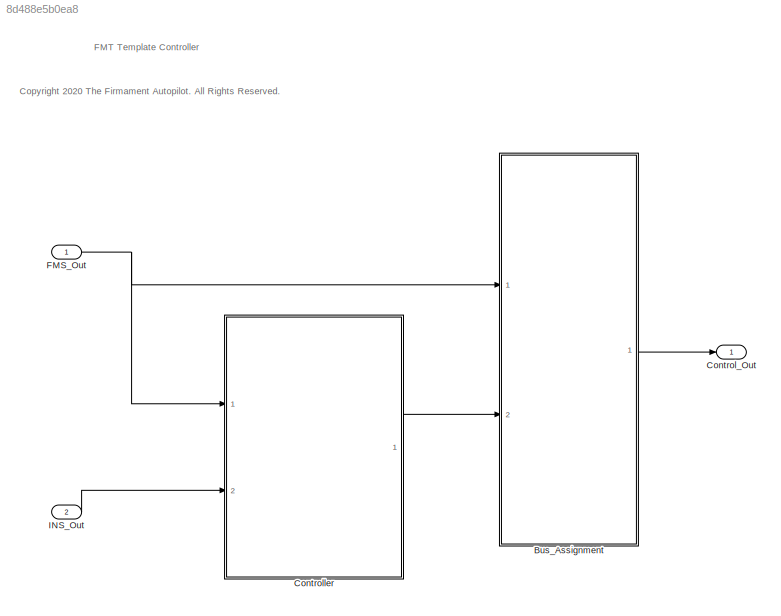
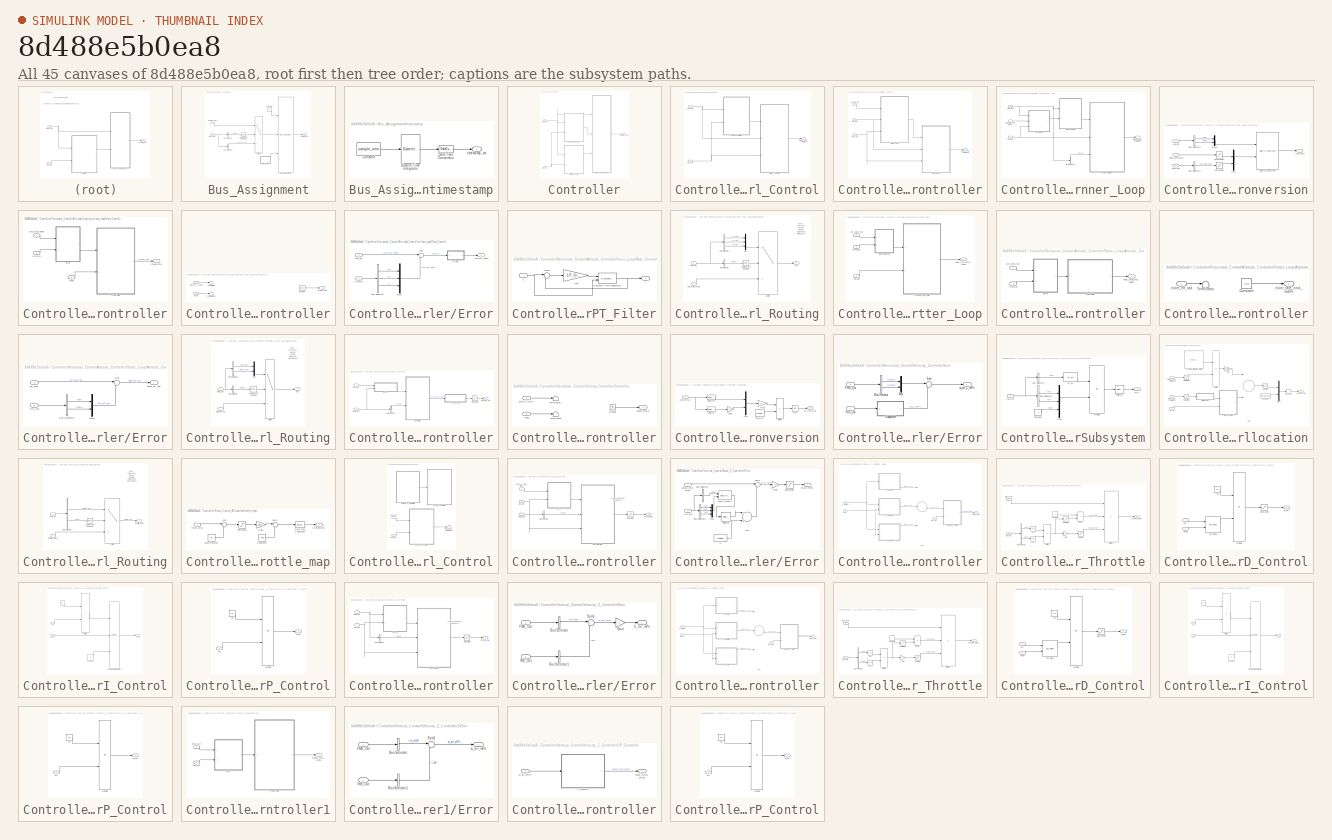
[diagram: thumbnail index - all 45 canvases of the model, root first then tree order]
MODEL slx_8d488e5b0ea8
KIND model
CONFIG AbsTol = auto
CONFIG EnableMultiTasking = off
CONFIG FixedStep = control_dt
CONFIG MaxStep = auto
CONFIG MinStep = auto
CONFIG RelTol = 1e-3
CONFIG SampleTimeConstraint = Unconstrained
CONFIG Solver = FixedStepDiscrete
CONFIG SolverName = FixedStepDiscrete
CONFIG StartTime = 0.0
CONFIG StopTime = 10.0
BLOCK [SubSystem] Bus_Assignment
  Ports = [2, 1]
  RequestExecContextInheritance = off
BLOCK [BusAssignment] Bus_Assignment/Bus Assignment
  AssignedSignals = actuator_cmd,timestamp
  Ports = [3, 1]
BLOCK [BusSelector] Bus_Assignment/Bus Selector
  OutputAsBus = off
  OutputSignals = state
  Ports = [1, 1]
BLOCK [BusSelector] Bus_Assignment/Bus Selector1
  OutputAsBus = off
  OutputSignals = actuator_cmd
  Ports = [1, 1]
BLOCK [Reference] Bus_Assignment/Compare To Constant  REF=simulink/Logic and Bit
Operations/Compare
To Constant
  Ports = [1, 1]
  SourceBlock = simulink/Logic and Bit\nOperations/Compare\nTo Constant
  SourceProductBaseCode = SL
  SourceProductName = Simulink
  SourceType = Compare To Constant
BLOCK [Constant] Bus_Assignment/Constant
  OutDataTypeStr = Bus: Control_Out_Bus
  Value = 0
BLOCK [Outport] Bus_Assignment/Control_Out
  IconDisplay = Port number
BLOCK [Inport] Bus_Assignment/FMS_Out
  IconDisplay = Port number
BLOCK [Switch] Bus_Assignment/Switch
  Criteria = u2 > Threshold
  InputSameDT = off
  SaturateOnIntegerOverflow = off
BLOCK [Inport] Bus_Assignment/actuator_cmd
  IconDisplay = Port number
  Port = 2
BLOCK [SubSystem] Bus_Assignment/timestamp
  Ports = [0, 1]
  RequestExecContextInheritance = off
BLOCK [Constant] Bus_Assignment/timestamp/Constant
  Value = sample_time
BLOCK [DataTypeConversion] Bus_Assignment/timestamp/Data Type Conversion
  OutDataTypeStr = uint32
  RndMeth = Floor
  SaturateOnIntegerOverflow = off
BLOCK [DiscreteIntegrator] Bus_Assignment/timestamp/Discrete-Time Integrator
  ICPrevOutput = DiscIntNeverNeededParam
  ICPrevScaledInput = DiscIntNeverNeededParam
  InitialConditionSetting = Auto
  IntegratorMethod = Accumulation: Forward Euler
  Ports = [1, 1]
  SampleTime = -1
BLOCK [Outport] Bus_Assignment/timestamp/timestamp_ms
  IconDisplay = Port number
BLOCK [Outport] Control_Out
  IconDisplay = Port number
  OutDataTypeStr = Bus: Control_Out_Bus
BLOCK [SubSystem] Controller
  Ports = [2, 1]
  RequestExecContextInheritance = off
BLOCK [Inport] Controller/FMS_Out
  IconDisplay = Port number
BLOCK [SubSystem] Controller/Horizontal_Control
  Ports = [2, 1]
  RequestExecContextInheritance = off
BLOCK [SubSystem] Controller/Horizontal_Control/Attitude_Controller
  Ports = [3, 1]
  RequestExecContextInheritance = off
BLOCK [Inport] Controller/Horizontal_Control/Attitude_Controller/FMS_Out
  IconDisplay = Port number
  Port = 2
BLOCK [Inport] Controller/Horizontal_Control/Attitude_Controller/INS_Out
  IconDisplay = Port number
  Port = 3
BLOCK [SubSystem] Controller/Horizontal_Control/Attitude_Controller/Inner_Loop
  Ports = [3, 1]
  RequestExecContextInheritance = off
BLOCK [BusSelector] Controller/Horizontal_Control/Attitude_Controller/Inner_Loop/Bus Selector
  OutputAsBus = off
  OutputSignals = reset
  Ports = [1, 1]
BLOCK [SubSystem] Controller/Horizontal_Control/Attitude_Controller/Inner_Loop/Conversion
  Ports = [3, 1]
  RequestExecContextInheritance = off
BLOCK [BusSelector] Controller/Horizontal_Control/Attitude_Controller/Inner_Loop/Conversion/Bus Selector2
  OutputAsBus = off
  OutputSignals = psi_rate_cmd
  Ports = [1, 1]
BLOCK [BusSelector] Controller/Horizontal_Control/Attitude_Controller/Inner_Loop/Conversion/Bus Selector3
  OutputAsBus = off
  OutputSignals = phi,theta
  Ports = [1, 2]
BLOCK [Inport] Controller/Horizontal_Control/Attitude_Controller/Inner_Loop/Conversion/FMS_Out
  IconDisplay = Port number
BLOCK [Inport] Controller/Horizontal_Control/Attitude_Controller/Inner_Loop/Conversion/INS_Out
  IconDisplay = Port number
  Port = 3
BLOCK [Mux] Controller/Horizontal_Control/Attitude_Controller/Inner_Loop/Conversion/Mux1
  DisplayOption = bar
  Inputs = 2
  Ports = [2, 1]
BLOCK [Mux] Controller/Horizontal_Control/Attitude_Controller/Inner_Loop/Conversion/Mux2
  DisplayOption = bar
  Inputs = 2
  Ports = [2, 1]
BLOCK [Saturate] Controller/Horizontal_Control/Attitude_Controller/Inner_Loop/Conversion/Saturation
  InputPortMap = u0
  LowerLimit = -CONTROL_PARAM.R_CMD_LIM
  Ports = [1, 1]
  UpperLimit = CONTROL_PARAM.R_CMD_LIM
BLOCK [Saturate] Controller/Horizontal_Control/Attitude_Controller/Inner_Loop/Conversion/Saturation1
  InputPortMap = u0
  LowerLimit = -CONTROL_PARAM.P_Q_CMD_LIM
  Ports = [1, 1]
  UpperLimit = CONTROL_PARAM.P_Q_CMD_LIM
BLOCK [Inport] Controller/Horizontal_Control/Attitude_Controller/Inner_Loop/Conversion/euler_rate_cmd
  IconDisplay = Port number
  Port = 2
BLOCK [Reference] Controller/Horizontal_Control/Attitude_Controller/Inner_Loop/Conversion/euler_to_ang_rate  REF=Quaternion/euler to ang rate
  Ports = [2, 1]
  SourceBlock = Quaternion/euler to ang rate
  SourceType = SubSystem
BLOCK [Outport] Controller/Horizontal_Control/Attitude_Controller/Inner_Loop/Conversion/rate_cmd
  IconDisplay = Port number
BLOCK [Inport] Controller/Horizontal_Control/Attitude_Controller/Inner_Loop/FMS_Out
  IconDisplay = Port number
  Port = 3
BLOCK [Inport] Controller/Horizontal_Control/Attitude_Controller/Inner_Loop/INS_Out
  IconDisplay = Port number
  Port = 2
BLOCK [SubSystem] Controller/Horizontal_Control/Attitude_Controller/Inner_Loop/Rate_Controller
  Ports = [3, 1]
  RequestExecContextInheritance = off
BLOCK [SubSystem] Controller/Horizontal_Control/Attitude_Controller/Inner_Loop/Rate_Controller/Controller
  Ports = [2, 1]
  RequestExecContextInheritance = off
BLOCK [Constant] Controller/Horizontal_Control/Attitude_Controller/Inner_Loop/Rate_Controller/Controller/Constant
  OutDataTypeStr = Inherit: Inherit via back propagation
  Value = [0;0;0]
BLOCK [Terminator] Controller/Horizontal_Control/Attitude_Controller/Inner_Loop/Rate_Controller/Controller/Terminator
BLOCK [Terminator] Controller/Horizontal_Control/Attitude_Controller/Inner_Loop/Rate_Controller/Controller/Terminator1
BLOCK [Inport] Controller/Horizontal_Control/Attitude_Controller/Inner_Loop/Rate_Controller/Controller/rate_err_radPs
  IconDisplay = Port number
BLOCK [Inport] Controller/Horizontal_Control/Attitude_Controller/Inner_Loop/Rate_Controller/Controller/reset
  IconDisplay = Port number
  Port = 2
BLOCK [Outport] Controller/Horizontal_Control/Attitude_Controller/Inner_Loop/Rate_Controller/Controller/torque_cmd
  IconDisplay = Port number
BLOCK [SubSystem] Controller/Horizontal_Control/Attitude_Controller/Inner_Loop/Rate_Controller/Error
  Ports = [2, 1]
  RequestExecContextInheritance = off
BLOCK [BusSelector] Controller/Horizontal_Control/Attitude_Controller/Inner_Loop/Rate_Controller/Error/Bus Selector1
  OutputAsBus = off
  OutputSignals = p,q,r
  Ports = [1, 3]
BLOCK [Inport] Controller/Horizontal_Control/Attitude_Controller/Inner_Loop/Rate_Controller/Error/INS_Out
  IconDisplay = Port number
  Port = 2
BLOCK [Mux] Controller/Horizontal_Control/Attitude_Controller/Inner_Loop/Rate_Controller/Error/Mux1
  DisplayOption = bar
  Inputs = 3
  Ports = [3, 1]
BLOCK [SubSystem] Controller/Horizontal_Control/Attitude_Controller/Inner_Loop/Rate_Controller/Error/PT_Filter
  Commented = through
  Ports = [1, 1]
  RequestExecContextInheritance = off
BLOCK [DiscreteIntegrator] Controller/Horizontal_Control/Attitude_Controller/Inner_Loop/Rate_Controller/Error/PT_Filter/Discrete-Time Integrator1
  ICPrevOutput = DiscIntNeverNeededParam
  ICPrevScaledInput = DiscIntNeverNeededParam
  InitialConditionSource = external
  OutDataTypeStr = single
  Ports = [2, 1]
  SampleTime = -1
BLOCK [Sum] Controller/Horizontal_Control/Attitude_Controller/Inner_Loop/Rate_Controller/Error/PT_Filter/Sum5
  IconShape = round
  InputSameDT = off
  Inputs = |+-
  OutDataTypeStr = Inherit: Inherit via internal rule
  Ports = [2, 1]
  SaturateOnIntegerOverflow = off
BLOCK [Gain] Controller/Horizontal_Control/Attitude_Controller/Inner_Loop/Rate_Controller/Error/PT_Filter/k_pt
  Gain = 1/T_filter
  OutDataTypeStr = Inherit: Inherit via internal rule
  ParamDataTypeStr = Inherit: Inherit via internal rule
  SaturateOnIntegerOverflow = off
BLOCK [Inport] Controller/Horizontal_Control/Attitude_Controller/Inner_Loop/Rate_Controller/Error/PT_Filter/u
  IconDisplay = Port number
BLOCK [Outport] Controller/Horizontal_Control/Attitude_Controller/Inner_Loop/Rate_Controller/Error/PT_Filter/y
  IconDisplay = Port number
BLOCK [Sum] Controller/Horizontal_Control/Attitude_Controller/Inner_Loop/Rate_Controller/Error/Sum
  IconShape = round
  InputSameDT = off
  Inputs = |+-
  OutDataTypeStr = Inherit: Inherit via internal rule
  Ports = [2, 1]
  SaturateOnIntegerOverflow = off
BLOCK [Outport] Controller/Horizontal_Control/Attitude_Controller/Inner_Loop/Rate_Controller/Error/rate_err_radPs
  IconDisplay = Port number
BLOCK [Inport] Controller/Horizontal_Control/Attitude_Controller/Inner_Loop/Rate_Controller/Error/rate_sp
  IconDisplay = Port number
BLOCK [Inport] Controller/Horizontal_Control/Attitude_Controller/Inner_Loop/Rate_Controller/INS_Out
  IconDisplay = Port number
  Port = 2
BLOCK [Inport] Controller/Horizontal_Control/Attitude_Controller/Inner_Loop/Rate_Controller/rate_cmd_radPs
  IconDisplay = Port number
BLOCK [Inport] Controller/Horizontal_Control/Attitude_Controller/Inner_Loop/Rate_Controller/reset
  IconDisplay = Port number
  Port = 3
BLOCK [Outport] Controller/Horizontal_Control/Attitude_Controller/Inner_Loop/Rate_Controller/torque_cmd
  IconDisplay = Port number
BLOCK [SubSystem] Controller/Horizontal_Control/Attitude_Controller/Inner_Loop/Signal_Routing
  Ports = [2, 1]
  RequestExecContextInheritance = off
BLOCK [BusSelector] Controller/Horizontal_Control/Attitude_Controller/Inner_Loop/Signal_Routing/Bus Selector
  OutputAsBus = off
  OutputSignals = mode
  Ports = [1, 1]
BLOCK [BusSelector] Controller/Horizontal_Control/Attitude_Controller/Inner_Loop/Signal_Routing/Bus Selector1
  OutputAsBus = off
  OutputSignals = p_cmd,q_cmd,r_cmd
  Ports = [1, 3]
BLOCK [Reference] Controller/Horizontal_Control/Attitude_Controller/Inner_Loop/Signal_Routing/Compare To Constant  REF=simulink/Logic and Bit
Operations/Compare
To Constant
  Ports = [1, 1]
  SourceBlock = simulink/Logic and Bit\nOperations/Compare\nTo Constant
  SourceProductBaseCode = SL
  SourceProductName = Simulink
  SourceType = Compare To Constant
BLOCK [Inport] Controller/Horizontal_Control/Attitude_Controller/Inner_Loop/Signal_Routing/FMS_Out
  IconDisplay = Port number
BLOCK [Mux] Controller/Horizontal_Control/Attitude_Controller/Inner_Loop/Signal_Routing/Mux
  DisplayOption = bar
  Inputs = 3
  Ports = [3, 1]
BLOCK [Switch] Controller/Horizontal_Control/Attitude_Controller/Inner_Loop/Signal_Routing/Switch
  Criteria = u2 > Threshold
  InputSameDT = off
  SaturateOnIntegerOverflow = off
BLOCK [Outport] Controller/Horizontal_Control/Attitude_Controller/Inner_Loop/Signal_Routing/out
  IconDisplay = Port number
BLOCK [Inport] Controller/Horizontal_Control/Attitude_Controller/Inner_Loop/Signal_Routing/rate_cmd_radPs
  IconDisplay = Port number
  Port = 2
BLOCK [Inport] Controller/Horizontal_Control/Attitude_Controller/Inner_Loop/euler_rate_cmd_radPs
  IconDisplay = Port number
BLOCK [Outport] Controller/Horizontal_Control/Attitude_Controller/Inner_Loop/torque_cmd_normalized
  IconDisplay = Port number
BLOCK [SubSystem] Controller/Horizontal_Control/Attitude_Controller/Outter_Loop
  Ports = [3, 1]
  RequestExecContextInheritance = off
BLOCK [SubSystem] Controller/Horizontal_Control/Attitude_Controller/Outter_Loop/Attitude_Controller
  Ports = [2, 1]
  RequestExecContextInheritance = off
BLOCK [SubSystem] Controller/Horizontal_Control/Attitude_Controller/Outter_Loop/Attitude_Controller/Controller
  Ports = [1, 1]
  RequestExecContextInheritance = off
BLOCK [Constant] Controller/Horizontal_Control/Attitude_Controller/Outter_Loop/Attitude_Controller/Controller/Constant
  OutDataTypeStr = Inherit: Inherit via back propagation
  Value = [0;0]
BLOCK [Terminator] Controller/Horizontal_Control/Attitude_Controller/Outter_Loop/Attitude_Controller/Controller/Terminator
BLOCK [Inport] Controller/Horizontal_Control/Attitude_Controller/Outter_Loop/Attitude_Controller/Controller/euler_err_rad
  IconDisplay = Port number
BLOCK [Outport] Controller/Horizontal_Control/Attitude_Controller/Outter_Loop/Attitude_Controller/Controller/euler_rate_cmd_radPs
  IconDisplay = Port number
BLOCK [SubSystem] Controller/Horizontal_Control/Attitude_Controller/Outter_Loop/Attitude_Controller/Error
  Ports = [2, 1]
  RequestExecContextInheritance = off
BLOCK [BusSelector] Controller/Horizontal_Control/Attitude_Controller/Outter_Loop/Attitude_Controller/Error/Bus Selector1
  OutputAsBus = off
  OutputSignals = phi,theta
  Ports = [1, 2]
BLOCK [Inport] Controller/Horizontal_Control/Attitude_Controller/Outter_Loop/Attitude_Controller/Error/INS_Out
  IconDisplay = Port number
  Port = 2
BLOCK [Mux] Controller/Horizontal_Control/Attitude_Controller/Outter_Loop/Attitude_Controller/Error/Mux1
  DisplayOption = bar
  Inputs = 2
  Ports = [2, 1]
BLOCK [Sum] Controller/Horizontal_Control/Attitude_Controller/Outter_Loop/Attitude_Controller/Error/Sum
  IconShape = round
  InputSameDT = off
  Inputs = |+-
  OutDataTypeStr = Inherit: Inherit via internal rule
  Ports = [2, 1]
  SaturateOnIntegerOverflow = off
BLOCK [Inport] Controller/Horizontal_Control/Attitude_Controller/Outter_Loop/Attitude_Controller/Error/att_cmd
  IconDisplay = Port number
BLOCK [Outport] Controller/Horizontal_Control/Attitude_Controller/Outter_Loop/Attitude_Controller/Error/euler_err_rad
  IconDisplay = Port number
BLOCK [Inport] Controller/Horizontal_Control/Attitude_Controller/Outter_Loop/Attitude_Controller/INS_Out
  IconDisplay = Port number
  Port = 2
BLOCK [Inport] Controller/Horizontal_Control/Attitude_Controller/Outter_Loop/Attitude_Controller/att_cmd_rad
  IconDisplay = Port number
BLOCK [Outport] Controller/Horizontal_Control/Attitude_Controller/Outter_Loop/Attitude_Controller/euler_rate_cmd_radPs
  IconDisplay = Port number
BLOCK [Inport] Controller/Horizontal_Control/Attitude_Controller/Outter_Loop/FMS_Out
  IconDisplay = Port number
  Port = 3
BLOCK [Inport] Controller/Horizontal_Control/Attitude_Controller/Outter_Loop/INS_Out
  IconDisplay = Port number
  Port = 2
BLOCK [SubSystem] Controller/Horizontal_Control/Attitude_Controller/Outter_Loop/Signal_Routing
  Ports = [2, 1]
  RequestExecContextInheritance = off
BLOCK [BusSelector] Controller/Horizontal_Control/Attitude_Controller/Outter_Loop/Signal_Routing/Bus Selector
  OutputAsBus = off
  OutputSignals = mode
  Ports = [1, 1]
BLOCK [BusSelector] Controller/Horizontal_Control/Attitude_Controller/Outter_Loop/Signal_Routing/Bus Selector1
  OutputAsBus = off
  OutputSignals = phi_cmd,theta_cmd
  Ports = [1, 2]
BLOCK [Reference] Controller/Horizontal_Control/Attitude_Controller/Outter_Loop/Signal_Routing/Compare To Constant  REF=simulink/Logic and Bit
Operations/Compare
To Constant
  Ports = [1, 1]
  SourceBlock = simulink/Logic and Bit\nOperations/Compare\nTo Constant
  SourceProductBaseCode = SL
  SourceProductName = Simulink
  SourceType = Compare To Constant
BLOCK [Inport] Controller/Horizontal_Control/Attitude_Controller/Outter_Loop/Signal_Routing/FMS_Out
  IconDisplay = Port number
  Port = 2
BLOCK [Mux] Controller/Horizontal_Control/Attitude_Controller/Outter_Loop/Signal_Routing/Mux
  DisplayOption = bar
  Inputs = 2
  Ports = [2, 1]
BLOCK [Switch] Controller/Horizontal_Control/Attitude_Controller/Outter_Loop/Signal_Routing/Switch
  Criteria = u2 > Threshold
  InputSameDT = off
  SaturateOnIntegerOverflow = off
BLOCK [Inport] Controller/Horizontal_Control/Attitude_Controller/Outter_Loop/Signal_Routing/att_cmd_rad
  IconDisplay = Port number
BLOCK [Outport] Controller/Horizontal_Control/Attitude_Controller/Outter_Loop/Signal_Routing/out
  IconDisplay = Port number
BLOCK [Inport] Controller/Horizontal_Control/Attitude_Controller/Outter_Loop/att_cmd_rad
  IconDisplay = Port number
BLOCK [Outport] Controller/Horizontal_Control/Attitude_Controller/Outter_Loop/euler_rate_cmd_radPs
  IconDisplay = Port number
BLOCK [Inport] Controller/Horizontal_Control/Attitude_Controller/att_cmd_rad
  IconDisplay = Port number
BLOCK [Outport] Controller/Horizontal_Control/Attitude_Controller/torque_cmd_normalized
  IconDisplay = Port number
BLOCK [Inport] Controller/Horizontal_Control/FMS_Out
  IconDisplay = Port number
BLOCK [Inport] Controller/Horizontal_Control/INS_Out
  IconDisplay = Port number
  Port = 2
BLOCK [SubSystem] Controller/Horizontal_Control/Velocity_Controller
  Ports = [2, 1]
  RequestExecContextInheritance = off
BLOCK [BusSelector] Controller/Horizontal_Control/Velocity_Controller/Bus Selector
  OutputAsBus = off
  OutputSignals = reset
  Ports = [1, 1]
BLOCK [SubSystem] Controller/Horizontal_Control/Velocity_Controller/Controller
  Ports = [2, 1]
  RequestExecContextInheritance = off
BLOCK [Ground] Controller/Horizontal_Control/Velocity_Controller/Controller/Ground
BLOCK [Terminator] Controller/Horizontal_Control/Velocity_Controller/Controller/Terminator
BLOCK [Terminator] Controller/Horizontal_Control/Velocity_Controller/Controller/Terminator1
BLOCK [Outport] Controller/Horizontal_Control/Velocity_Controller/Controller/accel_cmd_C
  IconDisplay = Port number
BLOCK [Inport] Controller/Horizontal_Control/Velocity_Controller/Controller/reset
  IconDisplay = Port number
  Port = 2
BLOCK [Inport] Controller/Horizontal_Control/Velocity_Controller/Controller/uv_err_C_mPs
  IconDisplay = Port number
BLOCK [SubSystem] Controller/Horizontal_Control/Velocity_Controller/Conversion
  Ports = [1, 1]
  RequestExecContextInheritance = off
BLOCK [Trigonometry] Controller/Horizontal_Control/Velocity_Controller/Conversion/Atan
  Operator = atan
  Ports = [1, 1]
BLOCK [Constant] Controller/Horizontal_Control/Velocity_Controller/Conversion/Constant
  OutDataTypeStr = single
  Value = 9.8055
BLOCK [Product] Controller/Horizontal_Control/Velocity_Controller/Conversion/Divide
  InputSameDT = off
  Inputs = */
  OutDataTypeStr = Inherit: Inherit via internal rule
  Ports = [2, 1]
  RndMeth = Floor
  SaturateOnIntegerOverflow = off
BLOCK [Gain] Controller/Horizontal_Control/Velocity_Controller/Conversion/Gain1
  Gain = -1
  OutDataTypeStr = Inherit: Inherit via internal rule
  ParamDataTypeStr = Inherit: Inherit via internal rule
  SaturateOnIntegerOverflow = off
BLOCK [Mux] Controller/Horizontal_Control/Velocity_Controller/Conversion/Mux
  DisplayOption = bar
  Inputs = 2
  Ports = [2, 1]
BLOCK [Selector] Controller/Horizontal_Control/Velocity_Controller/Conversion/Selector
  IndexOptions = Index vector (dialog)
  Indices = 1
  InputPortWidth = 2
  OutputSizes = 1
  Ports = [1, 1]
BLOCK [Selector] Controller/Horizontal_Control/Velocity_Controller/Conversion/Selector1
  IndexOptions = Index vector (dialog)
  Indices = 2
  InputPortWidth = 2
  OutputSizes = 1
  Ports = [1, 1]
BLOCK [Inport] Controller/Horizontal_Control/Velocity_Controller/Conversion/accel_cmd_C
  IconDisplay = Port number
BLOCK [Outport] Controller/Horizontal_Control/Velocity_Controller/Conversion/att_cmd_rad
  IconDisplay = Port number
BLOCK [Gain] Controller/Horizontal_Control/Velocity_Controller/Conversion/mass
  Gain = 1.4
  OutDataTypeStr = Inherit: Inherit via internal rule
  ParamDataTypeStr = Inherit: Inherit via internal rule
  SaturateOnIntegerOverflow = off
BLOCK [SubSystem] Controller/Horizontal_Control/Velocity_Controller/Error
  Ports = [2, 1]
  RequestExecContextInheritance = off
BLOCK [BusSelector] Controller/Horizontal_Control/Velocity_Controller/Error/Bus Selector
  OutputAsBus = off
  OutputSignals = u_cmd,v_cmd
  Ports = [1, 2]
BLOCK [Inport] Controller/Horizontal_Control/Velocity_Controller/Error/FMS_Out
  IconDisplay = Port number
  Port = 2
BLOCK [Inport] Controller/Horizontal_Control/Velocity_Controller/Error/INS_Out
  IconDisplay = Port number
BLOCK [Mux] Controller/Horizontal_Control/Velocity_Controller/Error/Mux
  DisplayOption = bar
  Inputs = 2
  Ports = [2, 1]
BLOCK [SubSystem] Controller/Horizontal_Control/Velocity_Controller/Error/Subsystem
  Ports = [1, 1]
  RequestExecContextInheritance = off
BLOCK [BusSelector] Controller/Horizontal_Control/Velocity_Controller/Error/Subsystem/Bus Selector1
  OutputAsBus = off
  OutputSignals = vn,ve
  Ports = [1, 2]
BLOCK [BusSelector] Controller/Horizontal_Control/Velocity_Controller/Error/Subsystem/Bus Selector2
  OutputAsBus = off
  OutputSignals = psi
  Ports = [1, 1]
BLOCK [Constant] Controller/Horizontal_Control/Velocity_Controller/Error/Subsystem/Constant
  OutDataTypeStr = single
  Value = 0
BLOCK [Inport] Controller/Horizontal_Control/Velocity_Controller/Error/Subsystem/INS_Out
  IconDisplay = Port number
BLOCK [Reference] Controller/Horizontal_Control/Velocity_Controller/Error/Subsystem/M_CO  REF=Rotation/M_CO
  Ports = [1, 1]
  SourceBlock = Rotation/M_CO
  SourceType = SubSystem
BLOCK [Product] Controller/Horizontal_Control/Velocity_Controller/Error/Subsystem/Multiply
  InputSameDT = off
  Multiplication = Matrix(*)
  OutDataTypeStr = Inherit: Inherit via internal rule
  Ports = [2, 1]
  RndMeth = Floor
  SaturateOnIntegerOverflow = off
BLOCK [Mux] Controller/Horizontal_Control/Velocity_Controller/Error/Subsystem/Mux2
  DisplayOption = bar
  Inputs = 3
  Ports = [3, 1]
BLOCK [Selector] Controller/Horizontal_Control/Velocity_Controller/Error/Subsystem/Selector
  IndexOptions = Index vector (dialog)
  Indices = [1 2]
  InputPortWidth = 3
  OutputSizes = 1
  Ports = [1, 1]
BLOCK [Outport] Controller/Horizontal_Control/Velocity_Controller/Error/Subsystem/uv_C
  IconDisplay = Port number
BLOCK [Sum] Controller/Horizontal_Control/Velocity_Controller/Error/Sum
  IconShape = round
  InputSameDT = off
  Inputs = |+-
  OutDataTypeStr = Inherit: Inherit via internal rule
  Ports = [2, 1]
  SaturateOnIntegerOverflow = off
BLOCK [Outport] Controller/Horizontal_Control/Velocity_Controller/Error/uv_err_C_mPs
  IconDisplay = Port number
BLOCK [Inport] Controller/Horizontal_Control/Velocity_Controller/FMS_Out
  IconDisplay = Port number
BLOCK [Inport] Controller/Horizontal_Control/Velocity_Controller/INS_Out
  IconDisplay = Port number
  Port = 2
BLOCK [Saturate] Controller/Horizontal_Control/Velocity_Controller/Saturation
  InputPortMap = u0
  LowerLimit = -CONTROL_PARAM.ROLL_PITCH_CMD_LIM
  Ports = [1, 1]
  UpperLimit = CONTROL_PARAM.ROLL_PITCH_CMD_LIM
BLOCK [Outport] Controller/Horizontal_Control/Velocity_Controller/att_cmd_rad
  IconDisplay = Port number
BLOCK [Outport] Controller/Horizontal_Control/torque_cmd_normalized
  IconDisplay = Port number
BLOCK [Inport] Controller/INS_Out
  IconDisplay = Port number
  Port = 2
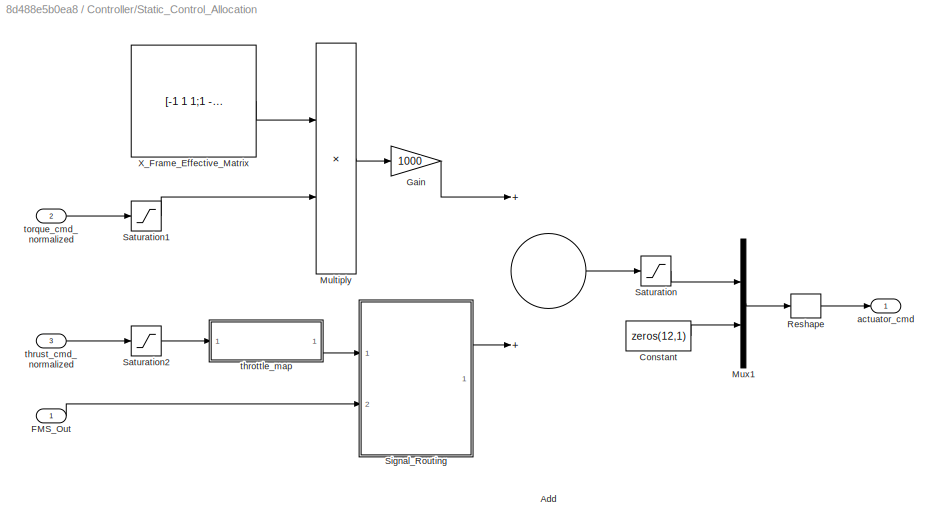
BLOCK [SubSystem] Controller/Static_Control_Allocation
  Ports = [3, 1]
  RequestExecContextInheritance = off
BLOCK [Sum] Controller/Static_Control_Allocation/Add
  InputSameDT = off
  OutDataTypeStr = uint16
  Ports = [2, 1]
  SaturateOnIntegerOverflow = off
BLOCK [Constant] Controller/Static_Control_Allocation/Constant
  OutDataTypeStr = uint16
  Value = zeros(12,1)
  VectorParams1D = off
BLOCK [Inport] Controller/Static_Control_Allocation/FMS_Out
  IconDisplay = Port number
BLOCK [Gain] Controller/Static_Control_Allocation/Gain
  Gain = 1000
  OutDataTypeStr = uint16
  ParamDataTypeStr = Inherit: Inherit via internal rule
  SaturateOnIntegerOverflow = off
BLOCK [Product] Controller/Static_Control_Allocation/Multiply
  InputSameDT = off
  Multiplication = Matrix(*)
  Ports = [2, 1]
  RndMeth = Floor
  SaturateOnIntegerOverflow = off
BLOCK [Mux] Controller/Static_Control_Allocation/Mux1
  DisplayOption = bar
  Inputs = 2
  Ports = [2, 1]
BLOCK [Reshape] Controller/Static_Control_Allocation/Reshape
  OutputDimensionality = Customize
  OutputDimensions = [16,1]
  Ports = [1, 1]
BLOCK [Saturate] Controller/Static_Control_Allocation/Saturation
  InputPortMap = u0
  LowerLimit = 1100
  Ports = [1, 1]
  UpperLimit = 1900
BLOCK [Saturate] Controller/Static_Control_Allocation/Saturation1
  InputPortMap = u0
  LowerLimit = -1
  Ports = [1, 1]
  UpperLimit = 1
BLOCK [Saturate] Controller/Static_Control_Allocation/Saturation2
  InputPortMap = u0
  LowerLimit = -1
  Ports = [1, 1]
  UpperLimit = 1
BLOCK [SubSystem] Controller/Static_Control_Allocation/Signal_Routing
  Ports = [2, 1]
  RequestExecContextInheritance = off
BLOCK [BusSelector] Controller/Static_Control_Allocation/Signal_Routing/Bus Selector1
  OutputAsBus = off
  OutputSignals = throttle_cmd,mode
  Ports = [1, 2]
BLOCK [Reference] Controller/Static_Control_Allocation/Signal_Routing/Compare To Constant  REF=simulink/Logic and Bit
Operations/Compare
To Constant
  Ports = [1, 1]
  SourceBlock = simulink/Logic and Bit\nOperations/Compare\nTo Constant
  SourceProductBaseCode = SL
  SourceProductName = Simulink
  SourceType = Compare To Constant
BLOCK [Inport] Controller/Static_Control_Allocation/Signal_Routing/FMS_Out
  IconDisplay = Port number
  Port = 2
BLOCK [Switch] Controller/Static_Control_Allocation/Signal_Routing/Switch
  Criteria = u2 > Threshold
  InputSameDT = off
  SaturateOnIntegerOverflow = off
BLOCK [Outport] Controller/Static_Control_Allocation/Signal_Routing/throttle_cmd
  IconDisplay = Port number
BLOCK [Inport] Controller/Static_Control_Allocation/Signal_Routing/throttle_cmd_in
  IconDisplay = Port number
BLOCK [Constant] Controller/Static_Control_Allocation/X_Frame_Effective_Matrix
  OutDataTypeStr = single
  Value = [-1 1 1;1 -1 1;1 1 -1;-1 -1 -1]
BLOCK [Outport] Controller/Static_Control_Allocation/actuator_cmd
  IconDisplay = Port number
BLOCK [SubSystem] Controller/Static_Control_Allocation/throttle_map
  Ports = [1, 1]
  RequestExecContextInheritance = off
BLOCK [Constant] Controller/Static_Control_Allocation/throttle_map/Constant1
  OutDataTypeStr = uint32
  Value = 1000
BLOCK [DataTypeConversion] Controller/Static_Control_Allocation/throttle_map/Data Type Conversion
  OutDataTypeStr = uint16
  RndMeth = Floor
  SaturateOnIntegerOverflow = off
BLOCK [Gain] Controller/Static_Control_Allocation/throttle_map/Gain1
  Gain = 1000
  OutDataTypeStr = uint32
  ParamDataTypeStr = Inherit: Inherit via internal rule
  SaturateOnIntegerOverflow = off
BLOCK [Saturate] Controller/Static_Control_Allocation/throttle_map/Saturation
  InputPortMap = u0
  LowerLimit = 0
  Ports = [1, 1]
  UpperLimit = 1
BLOCK [Sum] Controller/Static_Control_Allocation/throttle_map/Sum
  IconShape = round
  InputSameDT = off
  Inputs = |++
  OutDataTypeStr = Inherit: Inherit via internal rule
  Ports = [2, 1]
  SaturateOnIntegerOverflow = off
BLOCK [Sum] Controller/Static_Control_Allocation/throttle_map/Sum1
  IconShape = round
  InputSameDT = off
  Inputs = |++
  OutDataTypeStr = Inherit: Inherit via internal rule
  Ports = [2, 1]
  SaturateOnIntegerOverflow = off
BLOCK [Constant] Controller/Static_Control_Allocation/throttle_map/hover_throttle
  OutDataTypeStr = Inherit: Inherit via back propagation
  Value = 0.5
BLOCK [Outport] Controller/Static_Control_Allocation/throttle_map/throttle_cmd
  IconDisplay = Port number
BLOCK [Inport] Controller/Static_Control_Allocation/throttle_map/thrust_cmd
  IconDisplay = Port number
BLOCK [Inport] Controller/Static_Control_Allocation/thrust_cmd_normalized
  IconDisplay = Port number
  Port = 3
BLOCK [Inport] Controller/Static_Control_Allocation/torque_cmd_normalized
  IconDisplay = Port number
  Port = 2
BLOCK [SubSystem] Controller/Vertical_Control
  Ports = [2, 1]
  RequestExecContextInheritance = off
BLOCK [SubSystem] Controller/Vertical_Control/Accel_Z_Controller
  Commented = on
  Ports = [3, 1]
  RequestExecContextInheritance = off
BLOCK [BusSelector] Controller/Vertical_Control/Accel_Z_Controller/Bus Selector
  OutputAsBus = off
  OutputSignals = reset
  Ports = [1, 1]
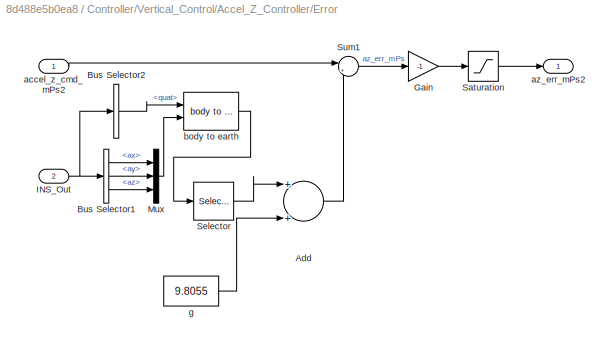
BLOCK [SubSystem] Controller/Vertical_Control/Accel_Z_Controller/Error
  Ports = [2, 1]
  RequestExecContextInheritance = off
BLOCK [Sum] Controller/Vertical_Control/Accel_Z_Controller/Error/Add
  InputSameDT = off
  OutDataTypeStr = Inherit: Inherit via internal rule
  Ports = [2, 1]
  SaturateOnIntegerOverflow = off
BLOCK [BusSelector] Controller/Vertical_Control/Accel_Z_Controller/Error/Bus Selector1
  OutputAsBus = off
  OutputSignals = ax,ay,az
  Ports = [1, 3]
BLOCK [BusSelector] Controller/Vertical_Control/Accel_Z_Controller/Error/Bus Selector2
  OutputAsBus = off
  OutputSignals = quat
  Ports = [1, 1]
BLOCK [Gain] Controller/Vertical_Control/Accel_Z_Controller/Error/Gain
  Gain = -1
  ParamDataTypeStr = Inherit: Inherit via internal rule
  SaturateOnIntegerOverflow = off
BLOCK [Inport] Controller/Vertical_Control/Accel_Z_Controller/Error/INS_Out
  IconDisplay = Port number
  Port = 2
BLOCK [Mux] Controller/Vertical_Control/Accel_Z_Controller/Error/Mux
  DisplayOption = bar
  Inputs = 3
  Ports = [3, 1]
BLOCK [Saturate] Controller/Vertical_Control/Accel_Z_Controller/Error/Saturation
  InputPortMap = u0
  LowerLimit = -6
  Ports = [1, 1]
  UpperLimit = 6
BLOCK [Selector] Controller/Vertical_Control/Accel_Z_Controller/Error/Selector
  IndexOptions = Index vector (dialog)
  Indices = 3
  InputPortWidth = 3
  OutputSizes = 1
  Ports = [1, 1]
BLOCK [Sum] Controller/Vertical_Control/Accel_Z_Controller/Error/Sum1
  IconShape = round
  InputSameDT = off
  Inputs = |+-
  OutDataTypeStr = Inherit: Inherit via internal rule
  Ports = [2, 1]
  SaturateOnIntegerOverflow = off
BLOCK [Inport] Controller/Vertical_Control/Accel_Z_Controller/Error/accel_z_cmd_mPs2
  IconDisplay = Port number
BLOCK [Outport] Controller/Vertical_Control/Accel_Z_Controller/Error/az_err_mPs2
  IconDisplay = Port number
BLOCK [Reference] Controller/Vertical_Control/Accel_Z_Controller/Error/body to earth  REF=Quaternion/body to earth
  Ports = [2, 1]
  SourceBlock = Quaternion/body to earth
  SourceType = SubSystem
BLOCK [Constant] Controller/Vertical_Control/Accel_Z_Controller/Error/g
  OutDataTypeStr = single
  Value = 9.8055
BLOCK [Inport] Controller/Vertical_Control/Accel_Z_Controller/FMS_Out
  IconDisplay = Port number
BLOCK [Inport] Controller/Vertical_Control/Accel_Z_Controller/INS_Out
  IconDisplay = Port number
  Port = 3
BLOCK [SubSystem] Controller/Vertical_Control/Accel_Z_Controller/PID_Controller
  Ports = [3, 1]
  RequestExecContextInheritance = off
BLOCK [Sum] Controller/Vertical_Control/Accel_Z_Controller/PID_Controller/Add
  AccumDataTypeStr = Inherit: Same as first input
  InputSameDT = off
  Inputs = +++
  OutDataTypeStr = Inherit: Inherit via internal rule
  Ports = [3, 1]
  SaturateOnIntegerOverflow = off
BLOCK [SubSystem] Controller/Vertical_Control/Accel_Z_Controller/PID_Controller/Boosted_Throttle
  Ports = [2, 1]
  RequestExecContextInheritance = off
BLOCK [BusSelector] Controller/Vertical_Control/Accel_Z_Controller/PID_Controller/Boosted_Throttle/Bus Selector
  OutputAsBus = off
  OutputSignals = phi,theta
  Ports = [1, 2]
BLOCK [Constant] Controller/Vertical_Control/Accel_Z_Controller/PID_Controller/Boosted_Throttle/Constant
  OutDataTypeStr = single
BLOCK [Trigonometry] Controller/Vertical_Control/Accel_Z_Controller/PID_Controller/Boosted_Throttle/Cos
  Operator = cos
  Ports = [1, 1]
BLOCK [Trigonometry] Controller/Vertical_Control/Accel_Z_Controller/PID_Controller/Boosted_Throttle/Cos1
  Operator = cos
  Ports = [1, 1]
BLOCK [Product] Controller/Vertical_Control/Accel_Z_Controller/PID_Controller/Boosted_Throttle/Divide
  InputSameDT = off
  Inputs = */
  OutDataTypeStr = Inherit: Inherit via internal rule
  Ports = [2, 1]
  RndMeth = Floor
  SaturateOnIntegerOverflow = off
BLOCK [Gain] Controller/Vertical_Control/Accel_Z_Controller/PID_Controller/Boosted_Throttle/Gain
  Gain = 2
  OutDataTypeStr = Inherit: Inherit via internal rule
  ParamDataTypeStr = Inherit: Inherit via internal rule
  SaturateOnIntegerOverflow = off
BLOCK [Inport] Controller/Vertical_Control/Accel_Z_Controller/PID_Controller/Boosted_Throttle/INS_Out
  IconDisplay = Port number
  Port = 2
BLOCK [Product] Controller/Vertical_Control/Accel_Z_Controller/PID_Controller/Boosted_Throttle/Multiply
  InputSameDT = off
  OutDataTypeStr = Inherit: Inherit via internal rule
  Ports = [2, 1]
  RndMeth = Floor
  SaturateOnIntegerOverflow = off
BLOCK [Product] Controller/Vertical_Control/Accel_Z_Controller/PID_Controller/Boosted_Throttle/Multiply1
  InputSameDT = off
  Inputs = 3
  OutDataTypeStr = Inherit: Inherit via internal rule
  Ports = [3, 1]
  RndMeth = Floor
  SaturateOnIntegerOverflow = off
BLOCK [Saturate] Controller/Vertical_Control/Accel_Z_Controller/PID_Controller/Boosted_Throttle/Saturation
  InputPortMap = u0
  LowerLimit = 0
  Ports = [1, 1]
  UpperLimit = 1
BLOCK [Saturate] Controller/Vertical_Control/Accel_Z_Controller/PID_Controller/Boosted_Throttle/Saturation1
  InputPortMap = u0
  LowerLimit = 0.5
  Ports = [1, 1]
  UpperLimit = 1
BLOCK [Outport] Controller/Vertical_Control/Accel_Z_Controller/PID_Controller/Boosted_Throttle/boosted_thrust
  IconDisplay = Port number
BLOCK [Inport] Controller/Vertical_Control/Accel_Z_Controller/PID_Controller/Boosted_Throttle/thrust_cmd
  IconDisplay = Port number
BLOCK [SubSystem] Controller/Vertical_Control/Accel_Z_Controller/PID_Controller/D_Control
  Ports = [2, 1]
  RequestExecContextInheritance = off
BLOCK [Reference] Controller/Vertical_Control/Accel_Z_Controller/PID_Controller/D_Control/DT1_Filter  REF=Filter/DT1_Filter
  Ports = [2, 1]
  SourceBlock = Filter/DT1_Filter
BLOCK [Product] Controller/Vertical_Control/Accel_Z_Controller/PID_Controller/D_Control/Multiply
  InputSameDT = off
  Ports = [2, 1]
  RndMeth = Floor
  SaturateOnIntegerOverflow = off
BLOCK [Saturate] Controller/Vertical_Control/Accel_Z_Controller/PID_Controller/D_Control/Saturation
  InputPortMap = u0
  LowerLimit = min_d
  Ports = [1, 1]
  UpperLimit = max_d
BLOCK [Outport] Controller/Vertical_Control/Accel_Z_Controller/PID_Controller/D_Control/d_out
  IconDisplay = Port number
BLOCK [Inport] Controller/Vertical_Control/Accel_Z_Controller/PID_Controller/D_Control/err
  IconDisplay = Port number
BLOCK [Constant] Controller/Vertical_Control/Accel_Z_Controller/PID_Controller/D_Control/kd
  OutDataTypeStr = single
  Value = kd
BLOCK [Inport] Controller/Vertical_Control/Accel_Z_Controller/PID_Controller/D_Control/reset
  IconDisplay = Port number
  Port = 2
BLOCK [Inport] Controller/Vertical_Control/Accel_Z_Controller/PID_Controller/INS_Out
  IconDisplay = Port number
  Port = 3
BLOCK [SubSystem] Controller/Vertical_Control/Accel_Z_Controller/PID_Controller/I_Control
  Ports = [2, 1]
  RequestExecContextInheritance = off
BLOCK [Constant] Controller/Vertical_Control/Accel_Z_Controller/PID_Controller/I_Control/Constant
  OutDataTypeStr = single
  Value = 0
BLOCK [DiscreteIntegrator] Controller/Vertical_Control/Accel_Z_Controller/PID_Controller/I_Control/Discrete-Time Integrator
  ExternalReset = level
  ICPrevOutput = DiscIntNeverNeededParam
  ICPrevScaledInput = DiscIntNeverNeededParam
  InitialConditionSetting = Auto
  InitialConditionSource = external
  LimitOutput = on
  LowerSaturationLimit = min_i
  Ports = [3, 1]
  SampleTime = -1
  UpperSaturationLimit = max_i
BLOCK [Product] Controller/Vertical_Control/Accel_Z_Controller/PID_Controller/I_Control/Multiply
  InputSameDT = off
  Ports = [2, 1]
  RndMeth = Floor
  SaturateOnIntegerOverflow = off
BLOCK [Inport] Controller/Vertical_Control/Accel_Z_Controller/PID_Controller/I_Control/err
  IconDisplay = Port number
BLOCK [Outport] Controller/Vertical_Control/Accel_Z_Controller/PID_Controller/I_Control/i_out
  IconDisplay = Port number
BLOCK [Constant] Controller/Vertical_Control/Accel_Z_Controller/PID_Controller/I_Control/ki
  OutDataTypeStr = single
  Value = ki
BLOCK [Inport] Controller/Vertical_Control/Accel_Z_Controller/PID_Controller/I_Control/reset
  IconDisplay = Port number
  Port = 2
BLOCK [SubSystem] Controller/Vertical_Control/Accel_Z_Controller/PID_Controller/P_Control
  Ports = [1, 1]
  RequestExecContextInheritance = off
BLOCK [Product] Controller/Vertical_Control/Accel_Z_Controller/PID_Controller/P_Control/Multiply
  InputSameDT = off
  Ports = [2, 1]
  RndMeth = Floor
  SaturateOnIntegerOverflow = off
BLOCK [Inport] Controller/Vertical_Control/Accel_Z_Controller/PID_Controller/P_Control/err
  IconDisplay = Port number
BLOCK [Constant] Controller/Vertical_Control/Accel_Z_Controller/PID_Controller/P_Control/kp
  OutDataTypeStr = single
  Value = kp
BLOCK [Outport] Controller/Vertical_Control/Accel_Z_Controller/PID_Controller/P_Control/p_out
  IconDisplay = Port number
BLOCK [Inport] Controller/Vertical_Control/Accel_Z_Controller/PID_Controller/h_err_mPs
  IconDisplay = Port number
BLOCK [Inport] Controller/Vertical_Control/Accel_Z_Controller/PID_Controller/reset
  IconDisplay = Port number
  Port = 2
BLOCK [Outport] Controller/Vertical_Control/Accel_Z_Controller/PID_Controller/thrust_cmd
  IconDisplay = Port number
BLOCK [Saturate] Controller/Vertical_Control/Accel_Z_Controller/Saturation
  InputPortMap = u0
  LowerLimit = -0.35
  Ports = [1, 1]
  UpperLimit = 0.35
BLOCK [Inport] Controller/Vertical_Control/Accel_Z_Controller/accel_z_cmd_mPs2
  IconDisplay = Port number
  Port = 2
BLOCK [Outport] Controller/Vertical_Control/Accel_Z_Controller/thrust_cmd
  IconDisplay = Port number
BLOCK [Inport] Controller/Vertical_Control/FMS_Out
  IconDisplay = Port number
BLOCK [Inport] Controller/Vertical_Control/INS_Out
  IconDisplay = Port number
  Port = 2
BLOCK [SubSystem] Controller/Vertical_Control/Veloxity_Z_Controller
  Ports = [2, 1]
  RequestExecContextInheritance = off
BLOCK [BusSelector] Controller/Vertical_Control/Veloxity_Z_Controller/Bus Selector
  OutputAsBus = off
  OutputSignals = reset
  Ports = [1, 1]
BLOCK [SubSystem] Controller/Vertical_Control/Veloxity_Z_Controller/Error
  Ports = [2, 1]
  RequestExecContextInheritance = off
BLOCK [BusSelector] Controller/Vertical_Control/Veloxity_Z_Controller/Error/Bus Selector
  OutputAsBus = off
  OutputSignals = w_cmd
  Ports = [1, 1]
BLOCK [BusSelector] Controller/Vertical_Control/Veloxity_Z_Controller/Error/Bus Selector1
  OutputAsBus = off
  OutputSignals = vd
  Ports = [1, 1]
BLOCK [Inport] Controller/Vertical_Control/Veloxity_Z_Controller/Error/FMS_Out
  IconDisplay = Port number
BLOCK [Gain] Controller/Vertical_Control/Veloxity_Z_Controller/Error/Gain
  Gain = -1
  ParamDataTypeStr = Inherit: Inherit via internal rule
  SaturateOnIntegerOverflow = off
BLOCK [Inport] Controller/Vertical_Control/Veloxity_Z_Controller/Error/INS_Out
  IconDisplay = Port number
  Port = 2
BLOCK [Sum] Controller/Vertical_Control/Veloxity_Z_Controller/Error/Sum1
  IconShape = round
  InputSameDT = off
  Inputs = |+-
  OutDataTypeStr = Inherit: Inherit via internal rule
  Ports = [2, 1]
  SaturateOnIntegerOverflow = off
BLOCK [Outport] Controller/Vertical_Control/Veloxity_Z_Controller/Error/h_err_mPs
  IconDisplay = Port number
BLOCK [Inport] Controller/Vertical_Control/Veloxity_Z_Controller/FMS_Out
  IconDisplay = Port number
BLOCK [Inport] Controller/Vertical_Control/Veloxity_Z_Controller/INS_Out
  IconDisplay = Port number
  Port = 2
BLOCK [SubSystem] Controller/Vertical_Control/Veloxity_Z_Controller/PID_Controller
  Ports = [3, 1]
  RequestExecContextInheritance = off
BLOCK [Sum] Controller/Vertical_Control/Veloxity_Z_Controller/PID_Controller/Add
  AccumDataTypeStr = Inherit: Same as first input
  InputSameDT = off
  Inputs = +++
  OutDataTypeStr = Inherit: Inherit via internal rule
  Ports = [3, 1]
  SaturateOnIntegerOverflow = off
BLOCK [SubSystem] Controller/Vertical_Control/Veloxity_Z_Controller/PID_Controller/Boosted_Throttle
  Ports = [2, 1]
  RequestExecContextInheritance = off
BLOCK [BusSelector] Controller/Vertical_Control/Veloxity_Z_Controller/PID_Controller/Boosted_Throttle/Bus Selector
  OutputAsBus = off
  OutputSignals = phi,theta
  Ports = [1, 2]
BLOCK [Constant] Controller/Vertical_Control/Veloxity_Z_Controller/PID_Controller/Boosted_Throttle/Constant
  OutDataTypeStr = single
BLOCK [Trigonometry] Controller/Vertical_Control/Veloxity_Z_Controller/PID_Controller/Boosted_Throttle/Cos
  Operator = cos
  Ports = [1, 1]
BLOCK [Trigonometry] Controller/Vertical_Control/Veloxity_Z_Controller/PID_Controller/Boosted_Throttle/Cos1
  Operator = cos
  Ports = [1, 1]
BLOCK [Product] Controller/Vertical_Control/Veloxity_Z_Controller/PID_Controller/Boosted_Throttle/Divide
  InputSameDT = off
  Inputs = */
  OutDataTypeStr = Inherit: Inherit via internal rule
  Ports = [2, 1]
  RndMeth = Floor
  SaturateOnIntegerOverflow = off
BLOCK [Gain] Controller/Vertical_Control/Veloxity_Z_Controller/PID_Controller/Boosted_Throttle/Gain
  Gain = 2
  OutDataTypeStr = Inherit: Inherit via internal rule
  ParamDataTypeStr = Inherit: Inherit via internal rule
  SaturateOnIntegerOverflow = off
BLOCK [Inport] Controller/Vertical_Control/Veloxity_Z_Controller/PID_Controller/Boosted_Throttle/INS_Out
  IconDisplay = Port number
  Port = 2
BLOCK [Product] Controller/Vertical_Control/Veloxity_Z_Controller/PID_Controller/Boosted_Throttle/Multiply
  InputSameDT = off
  OutDataTypeStr = Inherit: Inherit via internal rule
  Ports = [2, 1]
  RndMeth = Floor
  SaturateOnIntegerOverflow = off
BLOCK [Product] Controller/Vertical_Control/Veloxity_Z_Controller/PID_Controller/Boosted_Throttle/Multiply1
  InputSameDT = off
  Inputs = 3
  OutDataTypeStr = Inherit: Inherit via internal rule
  Ports = [3, 1]
  RndMeth = Floor
  SaturateOnIntegerOverflow = off
BLOCK [Saturate] Controller/Vertical_Control/Veloxity_Z_Controller/PID_Controller/Boosted_Throttle/Saturation
  InputPortMap = u0
  LowerLimit = 0
  Ports = [1, 1]
  UpperLimit = 1
BLOCK [Saturate] Controller/Vertical_Control/Veloxity_Z_Controller/PID_Controller/Boosted_Throttle/Saturation1
  InputPortMap = u0
  LowerLimit = 0.5
  Ports = [1, 1]
  UpperLimit = 1
BLOCK [Outport] Controller/Vertical_Control/Veloxity_Z_Controller/PID_Controller/Boosted_Throttle/boosted_thrust
  IconDisplay = Port number
BLOCK [Inport] Controller/Vertical_Control/Veloxity_Z_Controller/PID_Controller/Boosted_Throttle/thrust_cmd
  IconDisplay = Port number
BLOCK [SubSystem] Controller/Vertical_Control/Veloxity_Z_Controller/PID_Controller/D_Control
  Ports = [2, 1]
  RequestExecContextInheritance = off
BLOCK [Reference] Controller/Vertical_Control/Veloxity_Z_Controller/PID_Controller/D_Control/DT1_Filter  REF=Filter/DT1_Filter
  Ports = [2, 1]
  SourceBlock = Filter/DT1_Filter
BLOCK [Product] Controller/Vertical_Control/Veloxity_Z_Controller/PID_Controller/D_Control/Multiply
  InputSameDT = off
  Ports = [2, 1]
  RndMeth = Floor
  SaturateOnIntegerOverflow = off
BLOCK [Saturate] Controller/Vertical_Control/Veloxity_Z_Controller/PID_Controller/D_Control/Saturation
  InputPortMap = u0
  LowerLimit = min_d
  Ports = [1, 1]
  UpperLimit = max_d
BLOCK [Outport] Controller/Vertical_Control/Veloxity_Z_Controller/PID_Controller/D_Control/d_out
  IconDisplay = Port number
BLOCK [Inport] Controller/Vertical_Control/Veloxity_Z_Controller/PID_Controller/D_Control/err
  IconDisplay = Port number
BLOCK [Constant] Controller/Vertical_Control/Veloxity_Z_Controller/PID_Controller/D_Control/kd
  OutDataTypeStr = single
  Value = kd
BLOCK [Inport] Controller/Vertical_Control/Veloxity_Z_Controller/PID_Controller/D_Control/reset
  IconDisplay = Port number
  Port = 2
BLOCK [Inport] Controller/Vertical_Control/Veloxity_Z_Controller/PID_Controller/INS_Out
  IconDisplay = Port number
  Port = 3
BLOCK [SubSystem] Controller/Vertical_Control/Veloxity_Z_Controller/PID_Controller/I_Control
  Ports = [2, 1]
  RequestExecContextInheritance = off
BLOCK [Constant] Controller/Vertical_Control/Veloxity_Z_Controller/PID_Controller/I_Control/Constant
  OutDataTypeStr = single
  Value = 0
BLOCK [DiscreteIntegrator] Controller/Vertical_Control/Veloxity_Z_Controller/PID_Controller/I_Control/Discrete-Time Integrator
  ExternalReset = level
  ICPrevOutput = DiscIntNeverNeededParam
  ICPrevScaledInput = DiscIntNeverNeededParam
  InitialConditionSetting = Auto
  InitialConditionSource = external
  LimitOutput = on
  LowerSaturationLimit = min_i
  Ports = [3, 1]
  SampleTime = -1
  UpperSaturationLimit = max_i
BLOCK [Product] Controller/Vertical_Control/Veloxity_Z_Controller/PID_Controller/I_Control/Multiply
  InputSameDT = off
  Ports = [2, 1]
  RndMeth = Floor
  SaturateOnIntegerOverflow = off
BLOCK [Inport] Controller/Vertical_Control/Veloxity_Z_Controller/PID_Controller/I_Control/err
  IconDisplay = Port number
BLOCK [Outport] Controller/Vertical_Control/Veloxity_Z_Controller/PID_Controller/I_Control/i_out
  IconDisplay = Port number
BLOCK [Constant] Controller/Vertical_Control/Veloxity_Z_Controller/PID_Controller/I_Control/ki
  OutDataTypeStr = single
  Value = ki
BLOCK [Inport] Controller/Vertical_Control/Veloxity_Z_Controller/PID_Controller/I_Control/reset
  IconDisplay = Port number
  Port = 2
BLOCK [SubSystem] Controller/Vertical_Control/Veloxity_Z_Controller/PID_Controller/P_Control
  Ports = [1, 1]
  RequestExecContextInheritance = off
BLOCK [Product] Controller/Vertical_Control/Veloxity_Z_Controller/PID_Controller/P_Control/Multiply
  InputSameDT = off
  Ports = [2, 1]
  RndMeth = Floor
  SaturateOnIntegerOverflow = off
BLOCK [Inport] Controller/Vertical_Control/Veloxity_Z_Controller/PID_Controller/P_Control/err
  IconDisplay = Port number
BLOCK [Constant] Controller/Vertical_Control/Veloxity_Z_Controller/PID_Controller/P_Control/kp
  OutDataTypeStr = single
  Value = kp
BLOCK [Outport] Controller/Vertical_Control/Veloxity_Z_Controller/PID_Controller/P_Control/p_out
  IconDisplay = Port number
BLOCK [Inport] Controller/Vertical_Control/Veloxity_Z_Controller/PID_Controller/h_err_mPs
  IconDisplay = Port number
BLOCK [Inport] Controller/Vertical_Control/Veloxity_Z_Controller/PID_Controller/reset
  IconDisplay = Port number
  Port = 2
BLOCK [Outport] Controller/Vertical_Control/Veloxity_Z_Controller/PID_Controller/thrust_cmd
  IconDisplay = Port number
BLOCK [Saturate] Controller/Vertical_Control/Veloxity_Z_Controller/Saturation
  InputPortMap = u0
  LowerLimit = -0.35
  Ports = [1, 1]
  UpperLimit = 0.35
BLOCK [Outport] Controller/Vertical_Control/Veloxity_Z_Controller/thrust_cmd
  IconDisplay = Port number
BLOCK [SubSystem] Controller/Vertical_Control/Veloxity_Z_Controller1
  Commented = on
  Ports = [2, 1]
  RequestExecContextInheritance = off
BLOCK [SubSystem] Controller/Vertical_Control/Veloxity_Z_Controller1/Error
  Ports = [2, 1]
  RequestExecContextInheritance = off
BLOCK [BusSelector] Controller/Vertical_Control/Veloxity_Z_Controller1/Error/Bus Selector
  OutputAsBus = off
  OutputSignals = w_cmd
  Ports = [1, 1]
BLOCK [BusSelector] Controller/Vertical_Control/Veloxity_Z_Controller1/Error/Bus Selector1
  OutputAsBus = off
  OutputSignals = vd
  Ports = [1, 1]
BLOCK [Inport] Controller/Vertical_Control/Veloxity_Z_Controller1/Error/FMS_Out
  IconDisplay = Port number
BLOCK [Inport] Controller/Vertical_Control/Veloxity_Z_Controller1/Error/INS_Out
  IconDisplay = Port number
  Port = 2
BLOCK [Sum] Controller/Vertical_Control/Veloxity_Z_Controller1/Error/Sum1
  IconShape = round
  InputSameDT = off
  Inputs = |+-
  OutDataTypeStr = Inherit: Inherit via internal rule
  Ports = [2, 1]
  SaturateOnIntegerOverflow = off
BLOCK [Outport] Controller/Vertical_Control/Veloxity_Z_Controller1/Error/w_err_mPs
  IconDisplay = Port number
BLOCK [Inport] Controller/Vertical_Control/Veloxity_Z_Controller1/FMS_Out
  IconDisplay = Port number
BLOCK [Inport] Controller/Vertical_Control/Veloxity_Z_Controller1/INS_Out
  IconDisplay = Port number
  Port = 2
BLOCK [SubSystem] Controller/Vertical_Control/Veloxity_Z_Controller1/P_Controller
  Ports = [1, 1]
  RequestExecContextInheritance = off
BLOCK [SubSystem] Controller/Vertical_Control/Veloxity_Z_Controller1/P_Controller/P_Control
  Ports = [1, 1]
  RequestExecContextInheritance = off
BLOCK [Product] Controller/Vertical_Control/Veloxity_Z_Controller1/P_Controller/P_Control/Multiply
  InputSameDT = off
  Ports = [2, 1]
  RndMeth = Floor
  SaturateOnIntegerOverflow = off
BLOCK [Inport] Controller/Vertical_Control/Veloxity_Z_Controller1/P_Controller/P_Control/err
  IconDisplay = Port number
BLOCK [Constant] Controller/Vertical_Control/Veloxity_Z_Controller1/P_Controller/P_Control/kp
  OutDataTypeStr = single
  Value = kp
BLOCK [Outport] Controller/Vertical_Control/Veloxity_Z_Controller1/P_Controller/P_Control/p_out
  IconDisplay = Port number
BLOCK [Outport] Controller/Vertical_Control/Veloxity_Z_Controller1/P_Controller/accel_z_cmd_mPs2
  IconDisplay = Port number
BLOCK [Inport] Controller/Vertical_Control/Veloxity_Z_Controller1/P_Controller/w_err_mPs
  IconDisplay = Port number
BLOCK [Outport] Controller/Vertical_Control/Veloxity_Z_Controller1/accel_z_cmd_mPs2
  IconDisplay = Port number
BLOCK [Outport] Controller/Vertical_Control/thrust_cmd_normalized
  IconDisplay = Port number
BLOCK [Outport] Controller/actuator_cmd
  IconDisplay = Port number
BLOCK [Inport] FMS_Out
  IconDisplay = Port number
  OutDataTypeStr = Bus: FMS_Out_Bus
BLOCK [Inport] INS_Out
  IconDisplay = Port number
  OutDataTypeStr = Bus: INS_Out_Bus
  Port = 2
ANNOTATION (root): <copyright redacted>
ANNOTATION (root): FMT Template Controller
ANNOTATION Controller/Horizontal_Control/Attitude_Controller/Inner_Loop/Signal_Routing: mode: 0: Unknown 1: Mission 2: Stablize 3: Altitude Hold 4: Attitude Mode 5: Acro Mode
ANNOTATION Controller/Horizontal_Control/Attitude_Controller/Outter_Loop/Signal_Routing: mode: 0: Unknown 1: Mission 2: Position 3: Altitude Hold 4: Manual Mode 5: Acro Mode
ANNOTATION Controller/Static_Control_Allocation/Signal_Routing: mode: 0: Unknown 1: Mission 2: Position 3: Altitude Hold 4: Manual Mode 5: Acro Mode
ANNOTATION Controller/Vertical_Control/Accel_Z_Controller: Leave some margin for att control
ANNOTATION Controller/Vertical_Control/Veloxity_Z_Controller: Leave some margin for att control
LINE Bus_Assignment/Bus Assignment:1 -> Bus_Assignment/Control_Out:1
LINE Bus_Assignment/Bus Selector1:1 -> Bus_Assignment/Switch:3
LINE Bus_Assignment/Bus Selector:1 -> Bus_Assignment/Compare To Constant:1
LINE Bus_Assignment/Compare To Constant:1 -> Bus_Assignment/Switch:2
LINE Bus_Assignment/Constant:1 -> Bus_Assignment/Bus Assignment:1
NET Bus_Assignment/FMS_Out:1 -> Bus_Assignment/Bus Selector1:1, Bus_Assignment/Bus Selector:1
LINE Bus_Assignment/Switch:1 -> Bus_Assignment/Bus Assignment:2
LINE Bus_Assignment/actuator_cmd:1 -> Bus_Assignment/Switch:1
LINE Bus_Assignment/timestamp/Constant:1 -> Bus_Assignment/timestamp/Discrete-Time Integrator:1
LINE Bus_Assignment/timestamp/Data Type Conversion:1 -> Bus_Assignment/timestamp/timestamp_ms:1
LINE Bus_Assignment/timestamp/Discrete-Time Integrator:1 -> Bus_Assignment/timestamp/Data Type Conversion:1
LINE Bus_Assignment/timestamp:1 -> Bus_Assignment/Bus Assignment:3
LINE Bus_Assignment:1 -> Control_Out:1
NET Controller/FMS_Out:1 -> Controller/Horizontal_Control:1, Controller/Static_Control_Allocation:1, Controller/Vertical_Control:1
NET Controller/Horizontal_Control/Attitude_Controller/FMS_Out:1 -> Controller/Horizontal_Control/Attitude_Controller/Inner_Loop:3, Controller/Horizontal_Control/Attitude_Controller/Outter_Loop:3
NET Controller/Horizontal_Control/Attitude_Controller/INS_Out:1 -> Controller/Horizontal_Control/Attitude_Controller/Inner_Loop:2, Controller/Horizontal_Control/Attitude_Controller/Outter_Loop:2
LINE Controller/Horizontal_Control/Attitude_Controller/Inner_Loop/Bus Selector:1 -> Controller/Horizontal_Control/Attitude_Controller/Inner_Loop/Rate_Controller:3
LINE Controller/Horizontal_Control/Attitude_Controller/Inner_Loop/Conversion/Bus Selector2:1 -> Controller/Horizontal_Control/Attitude_Controller/Inner_Loop/Conversion/Saturation:1
LINE Controller/Horizontal_Control/Attitude_Controller/Inner_Loop/Conversion/Bus Selector3:1 -> Controller/Horizontal_Control/Attitude_Controller/Inner_Loop/Conversion/Mux2:1
LINE Controller/Horizontal_Control/Attitude_Controller/Inner_Loop/Conversion/Bus Selector3:2 -> Controller/Horizontal_Control/Attitude_Controller/Inner_Loop/Conversion/Mux2:2
LINE Controller/Horizontal_Control/Attitude_Controller/Inner_Loop/Conversion/FMS_Out:1 -> Controller/Horizontal_Control/Attitude_Controller/Inner_Loop/Conversion/Bus Selector2:1
LINE Controller/Horizontal_Control/Attitude_Controller/Inner_Loop/Conversion/INS_Out:1 -> Controller/Horizontal_Control/Attitude_Controller/Inner_Loop/Conversion/Bus Selector3:1
LINE Controller/Horizontal_Control/Attitude_Controller/Inner_Loop/Conversion/Mux1:1 -> Controller/Horizontal_Control/Attitude_Controller/Inner_Loop/Conversion/euler_to_ang_rate:2
LINE Controller/Horizontal_Control/Attitude_Controller/Inner_Loop/Conversion/Mux2:1 -> Controller/Horizontal_Control/Attitude_Controller/Inner_Loop/Conversion/euler_to_ang_rate:1
LINE Controller/Horizontal_Control/Attitude_Controller/Inner_Loop/Conversion/Saturation1:1 -> Controller/Horizontal_Control/Attitude_Controller/Inner_Loop/Conversion/Mux1:1
LINE Controller/Horizontal_Control/Attitude_Controller/Inner_Loop/Conversion/Saturation:1 -> Controller/Horizontal_Control/Attitude_Controller/Inner_Loop/Conversion/Mux1:2
LINE Controller/Horizontal_Control/Attitude_Controller/Inner_Loop/Conversion/euler_rate_cmd:1 -> Controller/Horizontal_Control/Attitude_Controller/Inner_Loop/Conversion/Saturation1:1
LINE Controller/Horizontal_Control/Attitude_Controller/Inner_Loop/Conversion/euler_to_ang_rate:1 -> Controller/Horizontal_Control/Attitude_Controller/Inner_Loop/Conversion/rate_cmd:1
LINE Controller/Horizontal_Control/Attitude_Controller/Inner_Loop/Conversion:1 -> Controller/Horizontal_Control/Attitude_Controller/Inner_Loop/Signal_Routing:2
NET Controller/Horizontal_Control/Attitude_Controller/Inner_Loop/FMS_Out:1 -> Controller/Horizontal_Control/Attitude_Controller/Inner_Loop/Bus Selector:1, Controller/Horizontal_Control/Attitude_Controller/Inner_Loop/Conversion:1, Controller/Horizontal_Control/Attitude_Controller/Inner_Loop/Signal_Routing:1
NET Controller/Horizontal_Control/Attitude_Controller/Inner_Loop/INS_Out:1 -> Controller/Horizontal_Control/Attitude_Controller/Inner_Loop/Conversion:3, Controller/Horizontal_Control/Attitude_Controller/Inner_Loop/Rate_Controller:2
LINE Controller/Horizontal_Control/Attitude_Controller/Inner_Loop/Rate_Controller/Controller/Constant:1 -> Controller/Horizontal_Control/Attitude_Controller/Inner_Loop/Rate_Controller/Controller/torque_cmd:1
LINE Controller/Horizontal_Control/Attitude_Controller/Inner_Loop/Rate_Controller/Controller/rate_err_radPs:1 -> Controller/Horizontal_Control/Attitude_Controller/Inner_Loop/Rate_Controller/Controller/Terminator:1
LINE Controller/Horizontal_Control/Attitude_Controller/Inner_Loop/Rate_Controller/Controller/reset:1 -> Controller/Horizontal_Control/Attitude_Controller/Inner_Loop/Rate_Controller/Controller/Terminator1:1
LINE Controller/Horizontal_Control/Attitude_Controller/Inner_Loop/Rate_Controller/Controller:1 -> Controller/Horizontal_Control/Attitude_Controller/Inner_Loop/Rate_Controller/torque_cmd:1
LINE Controller/Horizontal_Control/Attitude_Controller/Inner_Loop/Rate_Controller/Error/Bus Selector1:1 -> Controller/Horizontal_Control/Attitude_Controller/Inner_Loop/Rate_Controller/Error/Mux1:1
LINE Controller/Horizontal_Control/Attitude_Controller/Inner_Loop/Rate_Controller/Error/Bus Selector1:2 -> Controller/Horizontal_Control/Attitude_Controller/Inner_Loop/Rate_Controller/Error/Mux1:2
LINE Controller/Horizontal_Control/Attitude_Controller/Inner_Loop/Rate_Controller/Error/Bus Selector1:3 -> Controller/Horizontal_Control/Attitude_Controller/Inner_Loop/Rate_Controller/Error/Mux1:3
LINE Controller/Horizontal_Control/Attitude_Controller/Inner_Loop/Rate_Controller/Error/INS_Out:1 -> Controller/Horizontal_Control/Attitude_Controller/Inner_Loop/Rate_Controller/Error/Bus Selector1:1
LINE Controller/Horizontal_Control/Attitude_Controller/Inner_Loop/Rate_Controller/Error/Mux1:1 -> Controller/Horizontal_Control/Attitude_Controller/Inner_Loop/Rate_Controller/Error/Sum:2
NET Controller/Horizontal_Control/Attitude_Controller/Inner_Loop/Rate_Controller/Error/PT_Filter/Discrete-Time Integrator1:1 -> Controller/Horizontal_Control/Attitude_Controller/Inner_Loop/Rate_Controller/Error/PT_Filter/Sum5:2, Controller/Horizontal_Control/Attitude_Controller/Inner_Loop/Rate_Controller/Error/PT_Filter/y:1
LINE Controller/Horizontal_Control/Attitude_Controller/Inner_Loop/Rate_Controller/Error/PT_Filter/Sum5:1 -> Controller/Horizontal_Control/Attitude_Controller/Inner_Loop/Rate_Controller/Error/PT_Filter/k_pt:1
LINE Controller/Horizontal_Control/Attitude_Controller/Inner_Loop/Rate_Controller/Error/PT_Filter/k_pt:1 -> Controller/Horizontal_Control/Attitude_Controller/Inner_Loop/Rate_Controller/Error/PT_Filter/Discrete-Time Integrator1:1
NET Controller/Horizontal_Control/Attitude_Controller/Inner_Loop/Rate_Controller/Error/PT_Filter/u:1 -> Controller/Horizontal_Control/Attitude_Controller/Inner_Loop/Rate_Controller/Error/PT_Filter/Discrete-Time Integrator1:2, Controller/Horizontal_Control/Attitude_Controller/Inner_Loop/Rate_Controller/Error/PT_Filter/Sum5:1
LINE Controller/Horizontal_Control/Attitude_Controller/Inner_Loop/Rate_Controller/Error/PT_Filter:1 -> Controller/Horizontal_Control/Attitude_Controller/Inner_Loop/Rate_Controller/Error/rate_err_radPs:1
LINE Controller/Horizontal_Control/Attitude_Controller/Inner_Loop/Rate_Controller/Error/Sum:1 -> Controller/Horizontal_Control/Attitude_Controller/Inner_Loop/Rate_Controller/Error/PT_Filter:1
LINE Controller/Horizontal_Control/Attitude_Controller/Inner_Loop/Rate_Controller/Error/rate_sp:1 -> Controller/Horizontal_Control/Attitude_Controller/Inner_Loop/Rate_Controller/Error/Sum:1
LINE Controller/Horizontal_Control/Attitude_Controller/Inner_Loop/Rate_Controller/Error:1 -> Controller/Horizontal_Control/Attitude_Controller/Inner_Loop/Rate_Controller/Controller:1
LINE Controller/Horizontal_Control/Attitude_Controller/Inner_Loop/Rate_Controller/INS_Out:1 -> Controller/Horizontal_Control/Attitude_Controller/Inner_Loop/Rate_Controller/Error:2
LINE Controller/Horizontal_Control/Attitude_Controller/Inner_Loop/Rate_Controller/rate_cmd_radPs:1 -> Controller/Horizontal_Control/Attitude_Controller/Inner_Loop/Rate_Controller/Error:1
LINE Controller/Horizontal_Control/Attitude_Controller/Inner_Loop/Rate_Controller/reset:1 -> Controller/Horizontal_Control/Attitude_Controller/Inner_Loop/Rate_Controller/Controller:2
LINE Controller/Horizontal_Control/Attitude_Controller/Inner_Loop/Rate_Controller:1 -> Controller/Horizontal_Control/Attitude_Controller/Inner_Loop/torque_cmd_normalized:1
LINE Controller/Horizontal_Control/Attitude_Controller/Inner_Loop/Signal_Routing/Bus Selector1:1 -> Controller/Horizontal_Control/Attitude_Controller/Inner_Loop/Signal_Routing/Mux:1
LINE Controller/Horizontal_Control/Attitude_Controller/Inner_Loop/Signal_Routing/Bus Selector1:2 -> Controller/Horizontal_Control/Attitude_Controller/Inner_Loop/Signal_Routing/Mux:2
LINE Controller/Horizontal_Control/Attitude_Controller/Inner_Loop/Signal_Routing/Bus Selector1:3 -> Controller/Horizontal_Control/Attitude_Controller/Inner_Loop/Signal_Routing/Mux:3
LINE Controller/Horizontal_Control/Attitude_Controller/Inner_Loop/Signal_Routing/Bus Selector:1 -> Controller/Horizontal_Control/Attitude_Controller/Inner_Loop/Signal_Routing/Compare To Constant:1
LINE Controller/Horizontal_Control/Attitude_Controller/Inner_Loop/Signal_Routing/Compare To Constant:1 -> Controller/Horizontal_Control/Attitude_Controller/Inner_Loop/Signal_Routing/Switch:2
NET Controller/Horizontal_Control/Attitude_Controller/Inner_Loop/Signal_Routing/FMS_Out:1 -> Controller/Horizontal_Control/Attitude_Controller/Inner_Loop/Signal_Routing/Bus Selector1:1, Controller/Horizontal_Control/Attitude_Controller/Inner_Loop/Signal_Routing/Bus Selector:1
LINE Controller/Horizontal_Control/Attitude_Controller/Inner_Loop/Signal_Routing/Mux:1 -> Controller/Horizontal_Control/Attitude_Controller/Inner_Loop/Signal_Routing/Switch:1
LINE Controller/Horizontal_Control/Attitude_Controller/Inner_Loop/Signal_Routing/Switch:1 -> Controller/Horizontal_Control/Attitude_Controller/Inner_Loop/Signal_Routing/out:1
LINE Controller/Horizontal_Control/Attitude_Controller/Inner_Loop/Signal_Routing/rate_cmd_radPs:1 -> Controller/Horizontal_Control/Attitude_Controller/Inner_Loop/Signal_Routing/Switch:3
LINE Controller/Horizontal_Control/Attitude_Controller/Inner_Loop/Signal_Routing:1 -> Controller/Horizontal_Control/Attitude_Controller/Inner_Loop/Rate_Controller:1
LINE Controller/Horizontal_Control/Attitude_Controller/Inner_Loop/euler_rate_cmd_radPs:1 -> Controller/Horizontal_Control/Attitude_Controller/Inner_Loop/Conversion:2
LINE Controller/Horizontal_Control/Attitude_Controller/Inner_Loop:1 -> Controller/Horizontal_Control/Attitude_Controller/torque_cmd_normalized:1
LINE Controller/Horizontal_Control/Attitude_Controller/Outter_Loop/Attitude_Controller/Controller/Constant:1 -> Controller/Horizontal_Control/Attitude_Controller/Outter_Loop/Attitude_Controller/Controller/euler_rate_cmd_radPs:1
LINE Controller/Horizontal_Control/Attitude_Controller/Outter_Loop/Attitude_Controller/Controller/euler_err_rad:1 -> Controller/Horizontal_Control/Attitude_Controller/Outter_Loop/Attitude_Controller/Controller/Terminator:1
LINE Controller/Horizontal_Control/Attitude_Controller/Outter_Loop/Attitude_Controller/Controller:1 -> Controller/Horizontal_Control/Attitude_Controller/Outter_Loop/Attitude_Controller/euler_rate_cmd_radPs:1
LINE Controller/Horizontal_Control/Attitude_Controller/Outter_Loop/Attitude_Controller/Error/Bus Selector1:1 -> Controller/Horizontal_Control/Attitude_Controller/Outter_Loop/Attitude_Controller/Error/Mux1:1
LINE Controller/Horizontal_Control/Attitude_Controller/Outter_Loop/Attitude_Controller/Error/Bus Selector1:2 -> Controller/Horizontal_Control/Attitude_Controller/Outter_Loop/Attitude_Controller/Error/Mux1:2
LINE Controller/Horizontal_Control/Attitude_Controller/Outter_Loop/Attitude_Controller/Error/INS_Out:1 -> Controller/Horizontal_Control/Attitude_Controller/Outter_Loop/Attitude_Controller/Error/Bus Selector1:1
LINE Controller/Horizontal_Control/Attitude_Controller/Outter_Loop/Attitude_Controller/Error/Mux1:1 -> Controller/Horizontal_Control/Attitude_Controller/Outter_Loop/Attitude_Controller/Error/Sum:2
LINE Controller/Horizontal_Control/Attitude_Controller/Outter_Loop/Attitude_Controller/Error/Sum:1 -> Controller/Horizontal_Control/Attitude_Controller/Outter_Loop/Attitude_Controller/Error/euler_err_rad:1
LINE Controller/Horizontal_Control/Attitude_Controller/Outter_Loop/Attitude_Controller/Error/att_cmd:1 -> Controller/Horizontal_Control/Attitude_Controller/Outter_Loop/Attitude_Controller/Error/Sum:1
LINE Controller/Horizontal_Control/Attitude_Controller/Outter_Loop/Attitude_Controller/Error:1 -> Controller/Horizontal_Control/Attitude_Controller/Outter_Loop/Attitude_Controller/Controller:1
LINE Controller/Horizontal_Control/Attitude_Controller/Outter_Loop/Attitude_Controller/INS_Out:1 -> Controller/Horizontal_Control/Attitude_Controller/Outter_Loop/Attitude_Controller/Error:2
LINE Controller/Horizontal_Control/Attitude_Controller/Outter_Loop/Attitude_Controller/att_cmd_rad:1 -> Controller/Horizontal_Control/Attitude_Controller/Outter_Loop/Attitude_Controller/Error:1
LINE Controller/Horizontal_Control/Attitude_Controller/Outter_Loop/Attitude_Controller:1 -> Controller/Horizontal_Control/Attitude_Controller/Outter_Loop/euler_rate_cmd_radPs:1
LINE Controller/Horizontal_Control/Attitude_Controller/Outter_Loop/FMS_Out:1 -> Controller/Horizontal_Control/Attitude_Controller/Outter_Loop/Signal_Routing:2
LINE Controller/Horizontal_Control/Attitude_Controller/Outter_Loop/INS_Out:1 -> Controller/Horizontal_Control/Attitude_Controller/Outter_Loop/Attitude_Controller:2
LINE Controller/Horizontal_Control/Attitude_Controller/Outter_Loop/Signal_Routing/Bus Selector1:1 -> Controller/Horizontal_Control/Attitude_Controller/Outter_Loop/Signal_Routing/Mux:1
LINE Controller/Horizontal_Control/Attitude_Controller/Outter_Loop/Signal_Routing/Bus Selector1:2 -> Controller/Horizontal_Control/Attitude_Controller/Outter_Loop/Signal_Routing/Mux:2
LINE Controller/Horizontal_Control/Attitude_Controller/Outter_Loop/Signal_Routing/Bus Selector:1 -> Controller/Horizontal_Control/Attitude_Controller/Outter_Loop/Signal_Routing/Compare To Constant:1
LINE Controller/Horizontal_Control/Attitude_Controller/Outter_Loop/Signal_Routing/Compare To Constant:1 -> Controller/Horizontal_Control/Attitude_Controller/Outter_Loop/Signal_Routing/Switch:2
NET Controller/Horizontal_Control/Attitude_Controller/Outter_Loop/Signal_Routing/FMS_Out:1 -> Controller/Horizontal_Control/Attitude_Controller/Outter_Loop/Signal_Routing/Bus Selector1:1, Controller/Horizontal_Control/Attitude_Controller/Outter_Loop/Signal_Routing/Bus Selector:1
LINE Controller/Horizontal_Control/Attitude_Controller/Outter_Loop/Signal_Routing/Mux:1 -> Controller/Horizontal_Control/Attitude_Controller/Outter_Loop/Signal_Routing/Switch:1
LINE Controller/Horizontal_Control/Attitude_Controller/Outter_Loop/Signal_Routing/Switch:1 -> Controller/Horizontal_Control/Attitude_Controller/Outter_Loop/Signal_Routing/out:1
LINE Controller/Horizontal_Control/Attitude_Controller/Outter_Loop/Signal_Routing/att_cmd_rad:1 -> Controller/Horizontal_Control/Attitude_Controller/Outter_Loop/Signal_Routing/Switch:3
LINE Controller/Horizontal_Control/Attitude_Controller/Outter_Loop/Signal_Routing:1 -> Controller/Horizontal_Control/Attitude_Controller/Outter_Loop/Attitude_Controller:1
LINE Controller/Horizontal_Control/Attitude_Controller/Outter_Loop/att_cmd_rad:1 -> Controller/Horizontal_Control/Attitude_Controller/Outter_Loop/Signal_Routing:1
LINE Controller/Horizontal_Control/Attitude_Controller/Outter_Loop:1 -> Controller/Horizontal_Control/Attitude_Controller/Inner_Loop:1
LINE Controller/Horizontal_Control/Attitude_Controller/att_cmd_rad:1 -> Controller/Horizontal_Control/Attitude_Controller/Outter_Loop:1
LINE Controller/Horizontal_Control/Attitude_Controller:1 -> Controller/Horizontal_Control/torque_cmd_normalized:1
NET Controller/Horizontal_Control/FMS_Out:1 -> Controller/Horizontal_Control/Attitude_Controller:2, Controller/Horizontal_Control/Velocity_Controller:1
NET Controller/Horizontal_Control/INS_Out:1 -> Controller/Horizontal_Control/Attitude_Controller:3, Controller/Horizontal_Control/Velocity_Controller:2
LINE Controller/Horizontal_Control/Velocity_Controller/Bus Selector:1 -> Controller/Horizontal_Control/Velocity_Controller/Controller:2
LINE Controller/Horizontal_Control/Velocity_Controller/Controller/Ground:1 -> Controller/Horizontal_Control/Velocity_Controller/Controller/accel_cmd_C:1
LINE Controller/Horizontal_Control/Velocity_Controller/Controller/reset:1 -> Controller/Horizontal_Control/Velocity_Controller/Controller/Terminator:1
LINE Controller/Horizontal_Control/Velocity_Controller/Controller/uv_err_C_mPs:1 -> Controller/Horizontal_Control/Velocity_Controller/Controller/Terminator1:1
LINE Controller/Horizontal_Control/Velocity_Controller/Controller:1 -> Controller/Horizontal_Control/Velocity_Controller/Conversion:1
LINE Controller/Horizontal_Control/Velocity_Controller/Conversion/Atan:1 -> Controller/Horizontal_Control/Velocity_Controller/Conversion/att_cmd_rad:1
LINE Controller/Horizontal_Control/Velocity_Controller/Conversion/Constant:1 -> Controller/Horizontal_Control/Velocity_Controller/Conversion/Divide:2
LINE Controller/Horizontal_Control/Velocity_Controller/Conversion/Divide:1 -> Controller/Horizontal_Control/Velocity_Controller/Conversion/Atan:1
LINE Controller/Horizontal_Control/Velocity_Controller/Conversion/Gain1:1 -> Controller/Horizontal_Control/Velocity_Controller/Conversion/Mux:2
LINE Controller/Horizontal_Control/Velocity_Controller/Conversion/Mux:1 -> Controller/Horizontal_Control/Velocity_Controller/Conversion/mass:1
LINE Controller/Horizontal_Control/Velocity_Controller/Conversion/Selector1:1 -> Controller/Horizontal_Control/Velocity_Controller/Conversion/Mux:1
LINE Controller/Horizontal_Control/Velocity_Controller/Conversion/Selector:1 -> Controller/Horizontal_Control/Velocity_Controller/Conversion/Gain1:1
NET Controller/Horizontal_Control/Velocity_Controller/Conversion/accel_cmd_C:1 -> Controller/Horizontal_Control/Velocity_Controller/Conversion/Selector1:1, Controller/Horizontal_Control/Velocity_Controller/Conversion/Selector:1
LINE Controller/Horizontal_Control/Velocity_Controller/Conversion/mass:1 -> Controller/Horizontal_Control/Velocity_Controller/Conversion/Divide:1
LINE Controller/Horizontal_Control/Velocity_Controller/Conversion:1 -> Controller/Horizontal_Control/Velocity_Controller/Saturation:1
LINE Controller/Horizontal_Control/Velocity_Controller/Error/Bus Selector:1 -> Controller/Horizontal_Control/Velocity_Controller/Error/Mux:1
LINE Controller/Horizontal_Control/Velocity_Controller/Error/Bus Selector:2 -> Controller/Horizontal_Control/Velocity_Controller/Error/Mux:2
LINE Controller/Horizontal_Control/Velocity_Controller/Error/FMS_Out:1 -> Controller/Horizontal_Control/Velocity_Controller/Error/Bus Selector:1
LINE Controller/Horizontal_Control/Velocity_Controller/Error/INS_Out:1 -> Controller/Horizontal_Control/Velocity_Controller/Error/Subsystem:1
LINE Controller/Horizontal_Control/Velocity_Controller/Error/Mux:1 -> Controller/Horizontal_Control/Velocity_Controller/Error/Sum:1
LINE Controller/Horizontal_Control/Velocity_Controller/Error/Subsystem/Bus Selector1:1 -> Controller/Horizontal_Control/Velocity_Controller/Error/Subsystem/Mux2:1
LINE Controller/Horizontal_Control/Velocity_Controller/Error/Subsystem/Bus Selector1:2 -> Controller/Horizontal_Control/Velocity_Controller/Error/Subsystem/Mux2:2
LINE Controller/Horizontal_Control/Velocity_Controller/Error/Subsystem/Bus Selector2:1 -> Controller/Horizontal_Control/Velocity_Controller/Error/Subsystem/M_CO:1
LINE Controller/Horizontal_Control/Velocity_Controller/Error/Subsystem/Constant:1 -> Controller/Horizontal_Control/Velocity_Controller/Error/Subsystem/Mux2:3
NET Controller/Horizontal_Control/Velocity_Controller/Error/Subsystem/INS_Out:1 -> Controller/Horizontal_Control/Velocity_Controller/Error/Subsystem/Bus Selector1:1, Controller/Horizontal_Control/Velocity_Controller/Error/Subsystem/Bus Selector2:1
LINE Controller/Horizontal_Control/Velocity_Controller/Error/Subsystem/M_CO:1 -> Controller/Horizontal_Control/Velocity_Controller/Error/Subsystem/Multiply:1
LINE Controller/Horizontal_Control/Velocity_Controller/Error/Subsystem/Multiply:1 -> Controller/Horizontal_Control/Velocity_Controller/Error/Subsystem/Selector:1
LINE Controller/Horizontal_Control/Velocity_Controller/Error/Subsystem/Mux2:1 -> Controller/Horizontal_Control/Velocity_Controller/Error/Subsystem/Multiply:2
LINE Controller/Horizontal_Control/Velocity_Controller/Error/Subsystem/Selector:1 -> Controller/Horizontal_Control/Velocity_Controller/Error/Subsystem/uv_C:1
LINE Controller/Horizontal_Control/Velocity_Controller/Error/Subsystem:1 -> Controller/Horizontal_Control/Velocity_Controller/Error/Sum:2
LINE Controller/Horizontal_Control/Velocity_Controller/Error/Sum:1 -> Controller/Horizontal_Control/Velocity_Controller/Error/uv_err_C_mPs:1
LINE Controller/Horizontal_Control/Velocity_Controller/Error:1 -> Controller/Horizontal_Control/Velocity_Controller/Controller:1
NET Controller/Horizontal_Control/Velocity_Controller/FMS_Out:1 -> Controller/Horizontal_Control/Velocity_Controller/Bus Selector:1, Controller/Horizontal_Control/Velocity_Controller/Error:2
LINE Controller/Horizontal_Control/Velocity_Controller/INS_Out:1 -> Controller/Horizontal_Control/Velocity_Controller/Error:1
LINE Controller/Horizontal_Control/Velocity_Controller/Saturation:1 -> Controller/Horizontal_Control/Velocity_Controller/att_cmd_rad:1
LINE Controller/Horizontal_Control/Velocity_Controller:1 -> Controller/Horizontal_Control/Attitude_Controller:1
LINE Controller/Horizontal_Control:1 -> Controller/Static_Control_Allocation:2
NET Controller/INS_Out:1 -> Controller/Horizontal_Control:2, Controller/Vertical_Control:2
LINE Controller/Static_Control_Allocation/Add:1 -> Controller/Static_Control_Allocation/Saturation:1
LINE Controller/Static_Control_Allocation/Constant:1 -> Controller/Static_Control_Allocation/Mux1:2
LINE Controller/Static_Control_Allocation/FMS_Out:1 -> Controller/Static_Control_Allocation/Signal_Routing:2
LINE Controller/Static_Control_Allocation/Gain:1 -> Controller/Static_Control_Allocation/Add:1
LINE Controller/Static_Control_Allocation/Multiply:1 -> Controller/Static_Control_Allocation/Gain:1
LINE Controller/Static_Control_Allocation/Mux1:1 -> Controller/Static_Control_Allocation/Reshape:1
LINE Controller/Static_Control_Allocation/Reshape:1 -> Controller/Static_Control_Allocation/actuator_cmd:1
LINE Controller/Static_Control_Allocation/Saturation1:1 -> Controller/Static_Control_Allocation/Multiply:2
LINE Controller/Static_Control_Allocation/Saturation2:1 -> Controller/Static_Control_Allocation/throttle_map:1
LINE Controller/Static_Control_Allocation/Saturation:1 -> Controller/Static_Control_Allocation/Mux1:1
LINE Controller/Static_Control_Allocation/Signal_Routing/Bus Selector1:1 -> Controller/Static_Control_Allocation/Signal_Routing/Switch:1
LINE Controller/Static_Control_Allocation/Signal_Routing/Bus Selector1:2 -> Controller/Static_Control_Allocation/Signal_Routing/Compare To Constant:1
LINE Controller/Static_Control_Allocation/Signal_Routing/Compare To Constant:1 -> Controller/Static_Control_Allocation/Signal_Routing/Switch:2
LINE Controller/Static_Control_Allocation/Signal_Routing/FMS_Out:1 -> Controller/Static_Control_Allocation/Signal_Routing/Bus Selector1:1
LINE Controller/Static_Control_Allocation/Signal_Routing/Switch:1 -> Controller/Static_Control_Allocation/Signal_Routing/throttle_cmd:1
LINE Controller/Static_Control_Allocation/Signal_Routing/throttle_cmd_in:1 -> Controller/Static_Control_Allocation/Signal_Routing/Switch:3
LINE Controller/Static_Control_Allocation/Signal_Routing:1 -> Controller/Static_Control_Allocation/Add:2
LINE Controller/Static_Control_Allocation/X_Frame_Effective_Matrix:1 -> Controller/Static_Control_Allocation/Multiply:1
LINE Controller/Static_Control_Allocation/throttle_map/Constant1:1 -> Controller/Static_Control_Allocation/throttle_map/Sum1:2
LINE Controller/Static_Control_Allocation/throttle_map/Data Type Conversion:1 -> Controller/Static_Control_Allocation/throttle_map/throttle_cmd:1
LINE Controller/Static_Control_Allocation/throttle_map/Gain1:1 -> Controller/Static_Control_Allocation/throttle_map/Sum1:1
LINE Controller/Static_Control_Allocation/throttle_map/Saturation:1 -> Controller/Static_Control_Allocation/throttle_map/Gain1:1
LINE Controller/Static_Control_Allocation/throttle_map/Sum1:1 -> Controller/Static_Control_Allocation/throttle_map/Data Type Conversion:1
LINE Controller/Static_Control_Allocation/throttle_map/Sum:1 -> Controller/Static_Control_Allocation/throttle_map/Saturation:1
LINE Controller/Static_Control_Allocation/throttle_map/hover_throttle:1 -> Controller/Static_Control_Allocation/throttle_map/Sum:2
LINE Controller/Static_Control_Allocation/throttle_map/thrust_cmd:1 -> Controller/Static_Control_Allocation/throttle_map/Sum:1
LINE Controller/Static_Control_Allocation/throttle_map:1 -> Controller/Static_Control_Allocation/Signal_Routing:1
LINE Controller/Static_Control_Allocation/thrust_cmd_normalized:1 -> Controller/Static_Control_Allocation/Saturation2:1
LINE Controller/Static_Control_Allocation/torque_cmd_normalized:1 -> Controller/Static_Control_Allocation/Saturation1:1
LINE Controller/Static_Control_Allocation:1 -> Controller/actuator_cmd:1
LINE Controller/Vertical_Control/Accel_Z_Controller/Bus Selector:1 -> Controller/Vertical_Control/Accel_Z_Controller/PID_Controller:2
LINE Controller/Vertical_Control/Accel_Z_Controller/Error/Add:1 -> Controller/Vertical_Control/Accel_Z_Controller/Error/Sum1:2
LINE Controller/Vertical_Control/Accel_Z_Controller/Error/Bus Selector1:1 -> Controller/Vertical_Control/Accel_Z_Controller/Error/Mux:1
LINE Controller/Vertical_Control/Accel_Z_Controller/Error/Bus Selector1:2 -> Controller/Vertical_Control/Accel_Z_Controller/Error/Mux:2
LINE Controller/Vertical_Control/Accel_Z_Controller/Error/Bus Selector1:3 -> Controller/Vertical_Control/Accel_Z_Controller/Error/Mux:3
LINE Controller/Vertical_Control/Accel_Z_Controller/Error/Bus Selector2:1 -> Controller/Vertical_Control/Accel_Z_Controller/Error/body to earth:1
LINE Controller/Vertical_Control/Accel_Z_Controller/Error/Gain:1 -> Controller/Vertical_Control/Accel_Z_Controller/Error/Saturation:1
NET Controller/Vertical_Control/Accel_Z_Controller/Error/INS_Out:1 -> Controller/Vertical_Control/Accel_Z_Controller/Error/Bus Selector1:1, Controller/Vertical_Control/Accel_Z_Controller/Error/Bus Selector2:1
LINE Controller/Vertical_Control/Accel_Z_Controller/Error/Mux:1 -> Controller/Vertical_Control/Accel_Z_Controller/Error/body to earth:2
LINE Controller/Vertical_Control/Accel_Z_Controller/Error/Saturation:1 -> Controller/Vertical_Control/Accel_Z_Controller/Error/az_err_mPs2:1
LINE Controller/Vertical_Control/Accel_Z_Controller/Error/Selector:1 -> Controller/Vertical_Control/Accel_Z_Controller/Error/Add:1
LINE Controller/Vertical_Control/Accel_Z_Controller/Error/Sum1:1 -> Controller/Vertical_Control/Accel_Z_Controller/Error/Gain:1
LINE Controller/Vertical_Control/Accel_Z_Controller/Error/accel_z_cmd_mPs2:1 -> Controller/Vertical_Control/Accel_Z_Controller/Error/Sum1:1
LINE Controller/Vertical_Control/Accel_Z_Controller/Error/body to earth:1 -> Controller/Vertical_Control/Accel_Z_Controller/Error/Selector:1
LINE Controller/Vertical_Control/Accel_Z_Controller/Error/g:1 -> Controller/Vertical_Control/Accel_Z_Controller/Error/Add:2
LINE Controller/Vertical_Control/Accel_Z_Controller/Error:1 -> Controller/Vertical_Control/Accel_Z_Controller/PID_Controller:1
LINE Controller/Vertical_Control/Accel_Z_Controller/FMS_Out:1 -> Controller/Vertical_Control/Accel_Z_Controller/Bus Selector:1
NET Controller/Vertical_Control/Accel_Z_Controller/INS_Out:1 -> Controller/Vertical_Control/Accel_Z_Controller/Error:2, Controller/Vertical_Control/Accel_Z_Controller/PID_Controller:3
LINE Controller/Vertical_Control/Accel_Z_Controller/PID_Controller/Add:1 -> Controller/Vertical_Control/Accel_Z_Controller/PID_Controller/Boosted_Throttle:1
LINE Controller/Vertical_Control/Accel_Z_Controller/PID_Controller/Boosted_Throttle/Bus Selector:1 -> Controller/Vertical_Control/Accel_Z_Controller/PID_Controller/Boosted_Throttle/Cos:1
LINE Controller/Vertical_Control/Accel_Z_Controller/PID_Controller/Boosted_Throttle/Bus Selector:2 -> Controller/Vertical_Control/Accel_Z_Controller/PID_Controller/Boosted_Throttle/Cos1:1
LINE Controller/Vertical_Control/Accel_Z_Controller/PID_Controller/Boosted_Throttle/Constant:1 -> Controller/Vertical_Control/Accel_Z_Controller/PID_Controller/Boosted_Throttle/Divide:1
LINE Controller/Vertical_Control/Accel_Z_Controller/PID_Controller/Boosted_Throttle/Cos1:1 -> Controller/Vertical_Control/Accel_Z_Controller/PID_Controller/Boosted_Throttle/Multiply:2
LINE Controller/Vertical_Control/Accel_Z_Controller/PID_Controller/Boosted_Throttle/Cos:1 -> Controller/Vertical_Control/Accel_Z_Controller/PID_Controller/Boosted_Throttle/Multiply:1
LINE Controller/Vertical_Control/Accel_Z_Controller/PID_Controller/Boosted_Throttle/Divide:1 -> Controller/Vertical_Control/Accel_Z_Controller/PID_Controller/Boosted_Throttle/Multiply1:2
LINE Controller/Vertical_Control/Accel_Z_Controller/PID_Controller/Boosted_Throttle/Gain:1 -> Controller/Vertical_Control/Accel_Z_Controller/PID_Controller/Boosted_Throttle/Saturation:1
LINE Controller/Vertical_Control/Accel_Z_Controller/PID_Controller/Boosted_Throttle/INS_Out:1 -> Controller/Vertical_Control/Accel_Z_Controller/PID_Controller/Boosted_Throttle/Bus Selector:1
LINE Controller/Vertical_Control/Accel_Z_Controller/PID_Controller/Boosted_Throttle/Multiply1:1 -> Controller/Vertical_Control/Accel_Z_Controller/PID_Controller/Boosted_Throttle/boosted_thrust:1
NET Controller/Vertical_Control/Accel_Z_Controller/PID_Controller/Boosted_Throttle/Multiply:1 -> Controller/Vertical_Control/Accel_Z_Controller/PID_Controller/Boosted_Throttle/Gain:1, Controller/Vertical_Control/Accel_Z_Controller/PID_Controller/Boosted_Throttle/Saturation1:1
LINE Controller/Vertical_Control/Accel_Z_Controller/PID_Controller/Boosted_Throttle/Saturation1:1 -> Controller/Vertical_Control/Accel_Z_Controller/PID_Controller/Boosted_Throttle/Divide:2
LINE Controller/Vertical_Control/Accel_Z_Controller/PID_Controller/Boosted_Throttle/Saturation:1 -> Controller/Vertical_Control/Accel_Z_Controller/PID_Controller/Boosted_Throttle/Multiply1:3
LINE Controller/Vertical_Control/Accel_Z_Controller/PID_Controller/Boosted_Throttle/thrust_cmd:1 -> Controller/Vertical_Control/Accel_Z_Controller/PID_Controller/Boosted_Throttle/Multiply1:1
LINE Controller/Vertical_Control/Accel_Z_Controller/PID_Controller/Boosted_Throttle:1 -> Controller/Vertical_Control/Accel_Z_Controller/PID_Controller/thrust_cmd:1
LINE Controller/Vertical_Control/Accel_Z_Controller/PID_Controller/D_Control/DT1_Filter:1 -> Controller/Vertical_Control/Accel_Z_Controller/PID_Controller/D_Control/Multiply:2
LINE Controller/Vertical_Control/Accel_Z_Controller/PID_Controller/D_Control/Multiply:1 -> Controller/Vertical_Control/Accel_Z_Controller/PID_Controller/D_Control/Saturation:1
LINE Controller/Vertical_Control/Accel_Z_Controller/PID_Controller/D_Control/Saturation:1 -> Controller/Vertical_Control/Accel_Z_Controller/PID_Controller/D_Control/d_out:1
LINE Controller/Vertical_Control/Accel_Z_Controller/PID_Controller/D_Control/err:1 -> Controller/Vertical_Control/Accel_Z_Controller/PID_Controller/D_Control/DT1_Filter:1
LINE Controller/Vertical_Control/Accel_Z_Controller/PID_Controller/D_Control/kd:1 -> Controller/Vertical_Control/Accel_Z_Controller/PID_Controller/D_Control/Multiply:1
LINE Controller/Vertical_Control/Accel_Z_Controller/PID_Controller/D_Control/reset:1 -> Controller/Vertical_Control/Accel_Z_Controller/PID_Controller/D_Control/DT1_Filter:2
LINE Controller/Vertical_Control/Accel_Z_Controller/PID_Controller/D_Control:1 -> Controller/Vertical_Control/Accel_Z_Controller/PID_Controller/Add:3
LINE Controller/Vertical_Control/Accel_Z_Controller/PID_Controller/INS_Out:1 -> Controller/Vertical_Control/Accel_Z_Controller/PID_Controller/Boosted_Throttle:2
LINE Controller/Vertical_Control/Accel_Z_Controller/PID_Controller/I_Control/Constant:1 -> Controller/Vertical_Control/Accel_Z_Controller/PID_Controller/I_Control/Discrete-Time Integrator:3
LINE Controller/Vertical_Control/Accel_Z_Controller/PID_Controller/I_Control/Discrete-Time Integrator:1 -> Controller/Vertical_Control/Accel_Z_Controller/PID_Controller/I_Control/i_out:1
LINE Controller/Vertical_Control/Accel_Z_Controller/PID_Controller/I_Control/Multiply:1 -> Controller/Vertical_Control/Accel_Z_Controller/PID_Controller/I_Control/Discrete-Time Integrator:1
LINE Controller/Vertical_Control/Accel_Z_Controller/PID_Controller/I_Control/err:1 -> Controller/Vertical_Control/Accel_Z_Controller/PID_Controller/I_Control/Multiply:2
LINE Controller/Vertical_Control/Accel_Z_Controller/PID_Controller/I_Control/ki:1 -> Controller/Vertical_Control/Accel_Z_Controller/PID_Controller/I_Control/Multiply:1
LINE Controller/Vertical_Control/Accel_Z_Controller/PID_Controller/I_Control/reset:1 -> Controller/Vertical_Control/Accel_Z_Controller/PID_Controller/I_Control/Discrete-Time Integrator:2
LINE Controller/Vertical_Control/Accel_Z_Controller/PID_Controller/I_Control:1 -> Controller/Vertical_Control/Accel_Z_Controller/PID_Controller/Add:2
LINE Controller/Vertical_Control/Accel_Z_Controller/PID_Controller/P_Control/Multiply:1 -> Controller/Vertical_Control/Accel_Z_Controller/PID_Controller/P_Control/p_out:1
LINE Controller/Vertical_Control/Accel_Z_Controller/PID_Controller/P_Control/err:1 -> Controller/Vertical_Control/Accel_Z_Controller/PID_Controller/P_Control/Multiply:2
LINE Controller/Vertical_Control/Accel_Z_Controller/PID_Controller/P_Control/kp:1 -> Controller/Vertical_Control/Accel_Z_Controller/PID_Controller/P_Control/Multiply:1
LINE Controller/Vertical_Control/Accel_Z_Controller/PID_Controller/P_Control:1 -> Controller/Vertical_Control/Accel_Z_Controller/PID_Controller/Add:1
NET Controller/Vertical_Control/Accel_Z_Controller/PID_Controller/h_err_mPs:1 -> Controller/Vertical_Control/Accel_Z_Controller/PID_Controller/D_Control:1, Controller/Vertical_Control/Accel_Z_Controller/PID_Controller/I_Control:1, Controller/Vertical_Control/Accel_Z_Controller/PID_Controller/P_Control:1
NET Controller/Vertical_Control/Accel_Z_Controller/PID_Controller/reset:1 -> Controller/Vertical_Control/Accel_Z_Controller/PID_Controller/D_Control:2, Controller/Vertical_Control/Accel_Z_Controller/PID_Controller/I_Control:2
LINE Controller/Vertical_Control/Accel_Z_Controller/PID_Controller:1 -> Controller/Vertical_Control/Accel_Z_Controller/Saturation:1
LINE Controller/Vertical_Control/Accel_Z_Controller/Saturation:1 -> Controller/Vertical_Control/Accel_Z_Controller/thrust_cmd:1
LINE Controller/Vertical_Control/Accel_Z_Controller/accel_z_cmd_mPs2:1 -> Controller/Vertical_Control/Accel_Z_Controller/Error:1
LINE Controller/Vertical_Control/FMS_Out:1 -> Controller/Vertical_Control/Veloxity_Z_Controller:1
LINE Controller/Vertical_Control/INS_Out:1 -> Controller/Vertical_Control/Veloxity_Z_Controller:2
LINE Controller/Vertical_Control/Veloxity_Z_Controller/Bus Selector:1 -> Controller/Vertical_Control/Veloxity_Z_Controller/PID_Controller:2
LINE Controller/Vertical_Control/Veloxity_Z_Controller/Error/Bus Selector1:1 -> Controller/Vertical_Control/Veloxity_Z_Controller/Error/Sum1:2
LINE Controller/Vertical_Control/Veloxity_Z_Controller/Error/Bus Selector:1 -> Controller/Vertical_Control/Veloxity_Z_Controller/Error/Sum1:1
LINE Controller/Vertical_Control/Veloxity_Z_Controller/Error/FMS_Out:1 -> Controller/Vertical_Control/Veloxity_Z_Controller/Error/Bus Selector:1
LINE Controller/Vertical_Control/Veloxity_Z_Controller/Error/Gain:1 -> Controller/Vertical_Control/Veloxity_Z_Controller/Error/h_err_mPs:1
LINE Controller/Vertical_Control/Veloxity_Z_Controller/Error/INS_Out:1 -> Controller/Vertical_Control/Veloxity_Z_Controller/Error/Bus Selector1:1
LINE Controller/Vertical_Control/Veloxity_Z_Controller/Error/Sum1:1 -> Controller/Vertical_Control/Veloxity_Z_Controller/Error/Gain:1
LINE Controller/Vertical_Control/Veloxity_Z_Controller/Error:1 -> Controller/Vertical_Control/Veloxity_Z_Controller/PID_Controller:1
NET Controller/Vertical_Control/Veloxity_Z_Controller/FMS_Out:1 -> Controller/Vertical_Control/Veloxity_Z_Controller/Bus Selector:1, Controller/Vertical_Control/Veloxity_Z_Controller/Error:1
NET Controller/Vertical_Control/Veloxity_Z_Controller/INS_Out:1 -> Controller/Vertical_Control/Veloxity_Z_Controller/Error:2, Controller/Vertical_Control/Veloxity_Z_Controller/PID_Controller:3
LINE Controller/Vertical_Control/Veloxity_Z_Controller/PID_Controller/Add:1 -> Controller/Vertical_Control/Veloxity_Z_Controller/PID_Controller/Boosted_Throttle:1
LINE Controller/Vertical_Control/Veloxity_Z_Controller/PID_Controller/Boosted_Throttle/Bus Selector:1 -> Controller/Vertical_Control/Veloxity_Z_Controller/PID_Controller/Boosted_Throttle/Cos:1
LINE Controller/Vertical_Control/Veloxity_Z_Controller/PID_Controller/Boosted_Throttle/Bus Selector:2 -> Controller/Vertical_Control/Veloxity_Z_Controller/PID_Controller/Boosted_Throttle/Cos1:1
LINE Controller/Vertical_Control/Veloxity_Z_Controller/PID_Controller/Boosted_Throttle/Constant:1 -> Controller/Vertical_Control/Veloxity_Z_Controller/PID_Controller/Boosted_Throttle/Divide:1
LINE Controller/Vertical_Control/Veloxity_Z_Controller/PID_Controller/Boosted_Throttle/Cos1:1 -> Controller/Vertical_Control/Veloxity_Z_Controller/PID_Controller/Boosted_Throttle/Multiply:2
LINE Controller/Vertical_Control/Veloxity_Z_Controller/PID_Controller/Boosted_Throttle/Cos:1 -> Controller/Vertical_Control/Veloxity_Z_Controller/PID_Controller/Boosted_Throttle/Multiply:1
LINE Controller/Vertical_Control/Veloxity_Z_Controller/PID_Controller/Boosted_Throttle/Divide:1 -> Controller/Vertical_Control/Veloxity_Z_Controller/PID_Controller/Boosted_Throttle/Multiply1:2
LINE Controller/Vertical_Control/Veloxity_Z_Controller/PID_Controller/Boosted_Throttle/Gain:1 -> Controller/Vertical_Control/Veloxity_Z_Controller/PID_Controller/Boosted_Throttle/Saturation:1
LINE Controller/Vertical_Control/Veloxity_Z_Controller/PID_Controller/Boosted_Throttle/INS_Out:1 -> Controller/Vertical_Control/Veloxity_Z_Controller/PID_Controller/Boosted_Throttle/Bus Selector:1
LINE Controller/Vertical_Control/Veloxity_Z_Controller/PID_Controller/Boosted_Throttle/Multiply1:1 -> Controller/Vertical_Control/Veloxity_Z_Controller/PID_Controller/Boosted_Throttle/boosted_thrust:1
NET Controller/Vertical_Control/Veloxity_Z_Controller/PID_Controller/Boosted_Throttle/Multiply:1 -> Controller/Vertical_Control/Veloxity_Z_Controller/PID_Controller/Boosted_Throttle/Gain:1, Controller/Vertical_Control/Veloxity_Z_Controller/PID_Controller/Boosted_Throttle/Saturation1:1
LINE Controller/Vertical_Control/Veloxity_Z_Controller/PID_Controller/Boosted_Throttle/Saturation1:1 -> Controller/Vertical_Control/Veloxity_Z_Controller/PID_Controller/Boosted_Throttle/Divide:2
LINE Controller/Vertical_Control/Veloxity_Z_Controller/PID_Controller/Boosted_Throttle/Saturation:1 -> Controller/Vertical_Control/Veloxity_Z_Controller/PID_Controller/Boosted_Throttle/Multiply1:3
LINE Controller/Vertical_Control/Veloxity_Z_Controller/PID_Controller/Boosted_Throttle/thrust_cmd:1 -> Controller/Vertical_Control/Veloxity_Z_Controller/PID_Controller/Boosted_Throttle/Multiply1:1
LINE Controller/Vertical_Control/Veloxity_Z_Controller/PID_Controller/Boosted_Throttle:1 -> Controller/Vertical_Control/Veloxity_Z_Controller/PID_Controller/thrust_cmd:1
LINE Controller/Vertical_Control/Veloxity_Z_Controller/PID_Controller/D_Control/DT1_Filter:1 -> Controller/Vertical_Control/Veloxity_Z_Controller/PID_Controller/D_Control/Multiply:2
LINE Controller/Vertical_Control/Veloxity_Z_Controller/PID_Controller/D_Control/Multiply:1 -> Controller/Vertical_Control/Veloxity_Z_Controller/PID_Controller/D_Control/Saturation:1
LINE Controller/Vertical_Control/Veloxity_Z_Controller/PID_Controller/D_Control/Saturation:1 -> Controller/Vertical_Control/Veloxity_Z_Controller/PID_Controller/D_Control/d_out:1
LINE Controller/Vertical_Control/Veloxity_Z_Controller/PID_Controller/D_Control/err:1 -> Controller/Vertical_Control/Veloxity_Z_Controller/PID_Controller/D_Control/DT1_Filter:1
LINE Controller/Vertical_Control/Veloxity_Z_Controller/PID_Controller/D_Control/kd:1 -> Controller/Vertical_Control/Veloxity_Z_Controller/PID_Controller/D_Control/Multiply:1
LINE Controller/Vertical_Control/Veloxity_Z_Controller/PID_Controller/D_Control/reset:1 -> Controller/Vertical_Control/Veloxity_Z_Controller/PID_Controller/D_Control/DT1_Filter:2
LINE Controller/Vertical_Control/Veloxity_Z_Controller/PID_Controller/D_Control:1 -> Controller/Vertical_Control/Veloxity_Z_Controller/PID_Controller/Add:3
LINE Controller/Vertical_Control/Veloxity_Z_Controller/PID_Controller/INS_Out:1 -> Controller/Vertical_Control/Veloxity_Z_Controller/PID_Controller/Boosted_Throttle:2
LINE Controller/Vertical_Control/Veloxity_Z_Controller/PID_Controller/I_Control/Constant:1 -> Controller/Vertical_Control/Veloxity_Z_Controller/PID_Controller/I_Control/Discrete-Time Integrator:3
LINE Controller/Vertical_Control/Veloxity_Z_Controller/PID_Controller/I_Control/Discrete-Time Integrator:1 -> Controller/Vertical_Control/Veloxity_Z_Controller/PID_Controller/I_Control/i_out:1
LINE Controller/Vertical_Control/Veloxity_Z_Controller/PID_Controller/I_Control/Multiply:1 -> Controller/Vertical_Control/Veloxity_Z_Controller/PID_Controller/I_Control/Discrete-Time Integrator:1
LINE Controller/Vertical_Control/Veloxity_Z_Controller/PID_Controller/I_Control/err:1 -> Controller/Vertical_Control/Veloxity_Z_Controller/PID_Controller/I_Control/Multiply:2
LINE Controller/Vertical_Control/Veloxity_Z_Controller/PID_Controller/I_Control/ki:1 -> Controller/Vertical_Control/Veloxity_Z_Controller/PID_Controller/I_Control/Multiply:1
LINE Controller/Vertical_Control/Veloxity_Z_Controller/PID_Controller/I_Control/reset:1 -> Controller/Vertical_Control/Veloxity_Z_Controller/PID_Controller/I_Control/Discrete-Time Integrator:2
LINE Controller/Vertical_Control/Veloxity_Z_Controller/PID_Controller/I_Control:1 -> Controller/Vertical_Control/Veloxity_Z_Controller/PID_Controller/Add:2
LINE Controller/Vertical_Control/Veloxity_Z_Controller/PID_Controller/P_Control/Multiply:1 -> Controller/Vertical_Control/Veloxity_Z_Controller/PID_Controller/P_Control/p_out:1
LINE Controller/Vertical_Control/Veloxity_Z_Controller/PID_Controller/P_Control/err:1 -> Controller/Vertical_Control/Veloxity_Z_Controller/PID_Controller/P_Control/Multiply:2
LINE Controller/Vertical_Control/Veloxity_Z_Controller/PID_Controller/P_Control/kp:1 -> Controller/Vertical_Control/Veloxity_Z_Controller/PID_Controller/P_Control/Multiply:1
LINE Controller/Vertical_Control/Veloxity_Z_Controller/PID_Controller/P_Control:1 -> Controller/Vertical_Control/Veloxity_Z_Controller/PID_Controller/Add:1
NET Controller/Vertical_Control/Veloxity_Z_Controller/PID_Controller/h_err_mPs:1 -> Controller/Vertical_Control/Veloxity_Z_Controller/PID_Controller/D_Control:1, Controller/Vertical_Control/Veloxity_Z_Controller/PID_Controller/I_Control:1, Controller/Vertical_Control/Veloxity_Z_Controller/PID_Controller/P_Control:1
NET Controller/Vertical_Control/Veloxity_Z_Controller/PID_Controller/reset:1 -> Controller/Vertical_Control/Veloxity_Z_Controller/PID_Controller/D_Control:2, Controller/Vertical_Control/Veloxity_Z_Controller/PID_Controller/I_Control:2
LINE Controller/Vertical_Control/Veloxity_Z_Controller/PID_Controller:1 -> Controller/Vertical_Control/Veloxity_Z_Controller/Saturation:1
LINE Controller/Vertical_Control/Veloxity_Z_Controller/Saturation:1 -> Controller/Vertical_Control/Veloxity_Z_Controller/thrust_cmd:1
LINE Controller/Vertical_Control/Veloxity_Z_Controller1/Error/Bus Selector1:1 -> Controller/Vertical_Control/Veloxity_Z_Controller1/Error/Sum1:2
LINE Controller/Vertical_Control/Veloxity_Z_Controller1/Error/Bus Selector:1 -> Controller/Vertical_Control/Veloxity_Z_Controller1/Error/Sum1:1
LINE Controller/Vertical_Control/Veloxity_Z_Controller1/Error/FMS_Out:1 -> Controller/Vertical_Control/Veloxity_Z_Controller1/Error/Bus Selector:1
LINE Controller/Vertical_Control/Veloxity_Z_Controller1/Error/INS_Out:1 -> Controller/Vertical_Control/Veloxity_Z_Controller1/Error/Bus Selector1:1
LINE Controller/Vertical_Control/Veloxity_Z_Controller1/Error/Sum1:1 -> Controller/Vertical_Control/Veloxity_Z_Controller1/Error/w_err_mPs:1
LINE Controller/Vertical_Control/Veloxity_Z_Controller1/Error:1 -> Controller/Vertical_Control/Veloxity_Z_Controller1/P_Controller:1
LINE Controller/Vertical_Control/Veloxity_Z_Controller1/FMS_Out:1 -> Controller/Vertical_Control/Veloxity_Z_Controller1/Error:1
LINE Controller/Vertical_Control/Veloxity_Z_Controller1/INS_Out:1 -> Controller/Vertical_Control/Veloxity_Z_Controller1/Error:2
LINE Controller/Vertical_Control/Veloxity_Z_Controller1/P_Controller/P_Control/Multiply:1 -> Controller/Vertical_Control/Veloxity_Z_Controller1/P_Controller/P_Control/p_out:1
LINE Controller/Vertical_Control/Veloxity_Z_Controller1/P_Controller/P_Control/err:1 -> Controller/Vertical_Control/Veloxity_Z_Controller1/P_Controller/P_Control/Multiply:2
LINE Controller/Vertical_Control/Veloxity_Z_Controller1/P_Controller/P_Control/kp:1 -> Controller/Vertical_Control/Veloxity_Z_Controller1/P_Controller/P_Control/Multiply:1
LINE Controller/Vertical_Control/Veloxity_Z_Controller1/P_Controller/P_Control:1 -> Controller/Vertical_Control/Veloxity_Z_Controller1/P_Controller/accel_z_cmd_mPs2:1
LINE Controller/Vertical_Control/Veloxity_Z_Controller1/P_Controller/w_err_mPs:1 -> Controller/Vertical_Control/Veloxity_Z_Controller1/P_Controller/P_Control:1
LINE Controller/Vertical_Control/Veloxity_Z_Controller1/P_Controller:1 -> Controller/Vertical_Control/Veloxity_Z_Controller1/accel_z_cmd_mPs2:1
LINE Controller/Vertical_Control/Veloxity_Z_Controller1:1 -> Controller/Vertical_Control/Accel_Z_Controller:2
LINE Controller/Vertical_Control/Veloxity_Z_Controller:1 -> Controller/Vertical_Control/thrust_cmd_normalized:1
LINE Controller/Vertical_Control:1 -> Controller/Static_Control_Allocation:3
LINE Controller:1 -> Bus_Assignment:2
NET FMS_Out:1 -> Bus_Assignment:1, Controller:1
LINE INS_Out:1 -> Controller:2
note: NET lines group one-source signal fan-out (src -> all destinations, sorted); 1:1 wires keep LINE
